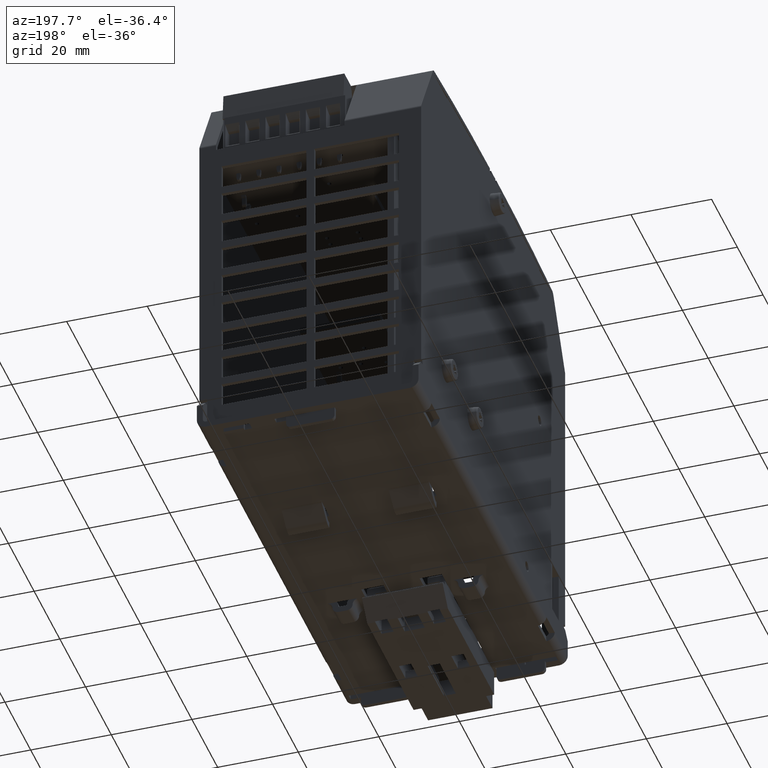
[diagram: clean part render]
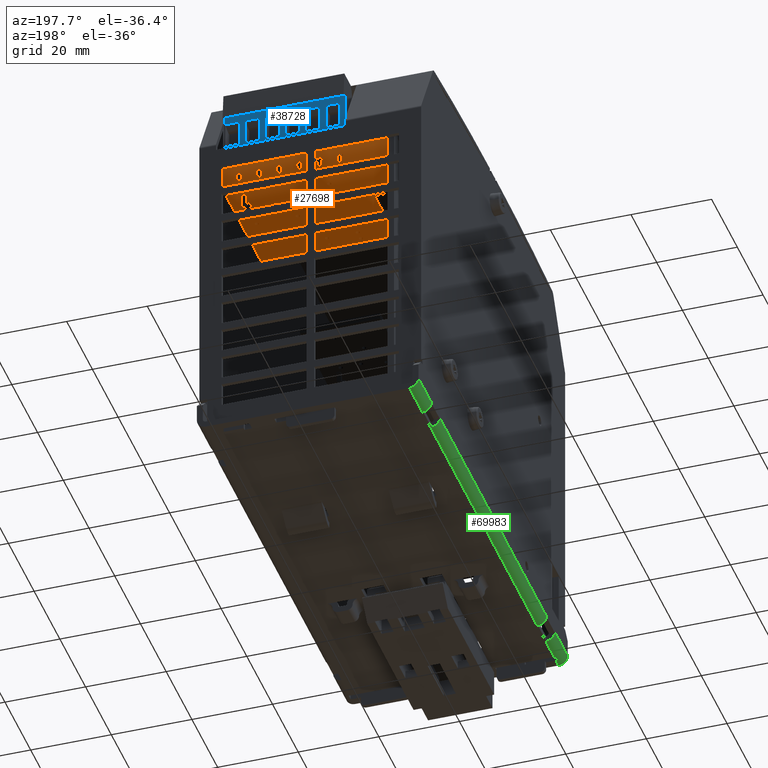
[diagram: same view with three faces highlighted in distinct colors, each labeled with its STEP entity id]
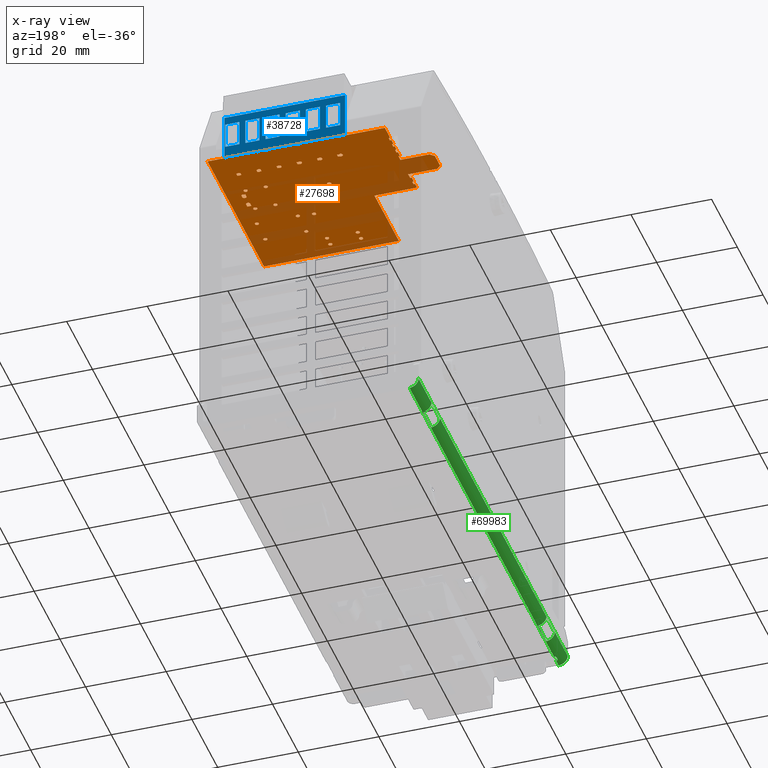
[diagram: x-ray of the same camera — body ghosted, the three highlighted faces saturated]
A machine part, auxiliary view with three faces highlighted in distinct colors.
The next image is the same camera in x-ray (body ghosted, the three faces saturated) — at least one of them is partly hidden behind the body in this view.
Their STEP definitions:

[orange] entity #27698 — the highlighted planar face has unit normal (0, 0, 1).
#25137=CARTESIAN_POINT('',(0.885543307086679,1.50557886499046,3.169708661417326));
#25138=VERTEX_POINT('',#25137);
#25139=CARTESIAN_POINT('',(0.885543307086679,1.544948943730618,3.169708661417326));
#25140=VERTEX_POINT('',#25139);
#25141=CARTESIAN_POINT('',(0.885543307086679,1.50557886499046,3.169708661417326));
#25142=DIRECTION('',(0.0,1.0,0.0));
#25143=VECTOR('',#25142,0.039370078740157);
#25144=LINE('',#25141,#25143);
#25145=EDGE_CURVE('',#25138,#25140,#25144,.T.);
#25196=CARTESIAN_POINT('',(0.884717067642148,1.50557886499046,3.169708661417326));
#25197=VERTEX_POINT('',#25196);
#25198=CARTESIAN_POINT('',(0.884717067642148,1.50557886499046,3.169708661417326));
#25199=DIRECTION('',(1.0,0.0,0.0));
#25200=VECTOR('',#25199,0.000826239444531);
#25201=LINE('',#25198,#25200);
#25202=EDGE_CURVE('',#25197,#25138,#25201,.T.);
#25288=CARTESIAN_POINT('',(0.846173228346522,1.544948943730618,3.169708661417326));
#25289=VERTEX_POINT('',#25288);
#25290=CARTESIAN_POINT('',(0.885543307086679,1.544948943730618,3.169708661417326));
#25291=DIRECTION('',(-1.0,0.0,0.0));
#25292=VECTOR('',#25291,0.039370078740158);
#25293=LINE('',#25290,#25292);
#25294=EDGE_CURVE('',#25140,#25289,#25293,.T.);
#25320=CARTESIAN_POINT('',(0.846173228346521,1.513532694947912,3.169708661417326));
#25321=VERTEX_POINT('',#25320);
#25330=CARTESIAN_POINT('',(0.846173228346521,1.544948943730618,3.169708661417326));
#25331=DIRECTION('',(0.0,-1.0,0.0));
#25332=VECTOR('',#25331,0.031416248782706);
#25333=LINE('',#25330,#25332);
#25334=EDGE_CURVE('',#25289,#25321,#25333,.T.);
#25383=CARTESIAN_POINT('',(0.846173228346521,1.386546045209567,3.169708661417326));
#25384=VERTEX_POINT('',#25383);
#25385=CARTESIAN_POINT('',(0.846173228346522,1.355019560206388,3.169708661417326));
#25386=VERTEX_POINT('',#25385);
#25387=CARTESIAN_POINT('',(0.846173228346521,1.386546045209567,3.169708661417326));
#25388=DIRECTION('',(0.0,-1.0,0.0));
#25389=VECTOR('',#25388,0.031526485003179);
#25390=LINE('',#25387,#25389);
#25391=EDGE_CURVE('',#25384,#25386,#25390,.T.);
#26005=CARTESIAN_POINT('',(0.885543307086679,1.394389638946545,3.169708661417326));
#26006=VERTEX_POINT('',#26005);
#26007=CARTESIAN_POINT('',(0.884736429813317,1.394389638946545,3.169708661417326));
#26008=VERTEX_POINT('',#26007);
#26009=CARTESIAN_POINT('',(0.885543307086679,1.394389638946545,3.169708661417326));
#26010=DIRECTION('',(-1.0,0.0,0.0));
#26011=VECTOR('',#26010,0.000806877273363);
#26012=LINE('',#26009,#26011);
#26013=EDGE_CURVE('',#26006,#26008,#26012,.T.);
#26109=CARTESIAN_POINT('',(0.885543307086679,1.355019560206388,3.169708661417326));
#26110=VERTEX_POINT('',#26109);
#26111=CARTESIAN_POINT('',(0.846173228346522,1.355019560206388,3.169708661417326));
#26112=DIRECTION('',(1.0,0.0,0.0));
#26113=VECTOR('',#26112,0.039370078740158);
#26114=LINE('',#26111,#26113);
#26115=EDGE_CURVE('',#25386,#26110,#26114,.T.);
#26212=CARTESIAN_POINT('',(0.885543307086679,1.355019560206388,3.169708661417326));
#26213=DIRECTION('',(0.0,1.0,0.0));
#26214=VECTOR('',#26213,0.039370078740157);
#26215=LINE('',#26212,#26214);
#26216=EDGE_CURVE('',#26110,#26006,#26215,.T.);
#26854=CARTESIAN_POINT('',(0.002310789090264,1.372964567165214,3.169708661417326));
#26855=DIRECTION('',(0.0,0.0,1.0));
#26856=DIRECTION('',(1.0,0.0,0.0));
#26857=AXIS2_PLACEMENT_3D('',#26854,#26855,#26856);
#26858=PLANE('',#26857);
#26859=CARTESIAN_POINT('',(-0.70866141732277,1.942039370078739,3.169708661417326));
#26860=VERTEX_POINT('',#26859);
#26861=CARTESIAN_POINT('',(-0.70866141732277,1.87903937007874,3.169708661417326));
#26862=VERTEX_POINT('',#26861);
#26863=CARTESIAN_POINT('',(-0.70866141732277,1.942039370078739,3.169708661417326));
#26864=DIRECTION('',(0.0,-1.0,0.0));
#26865=VECTOR('',#26864,0.062999999999999);
#26866=LINE('',#26863,#26865);
#26867=EDGE_CURVE('',#26860,#26862,#26866,.T.);
#26868=ORIENTED_EDGE('',*,*,#26867,.F.);
#26869=CARTESIAN_POINT('',(-0.69366141732277,1.942039370078739,3.169708661417326));
#26870=VERTEX_POINT('',#26869);
#26871=CARTESIAN_POINT('',(-0.69366141732277,1.942039370078739,3.169708661417326));
#26872=DIRECTION('',(-1.0,0.0,0.0));
#26873=VECTOR('',#26872,0.015);
#26874=LINE('',#26871,#26873);
#26875=EDGE_CURVE('',#26870,#26860,#26874,.T.);
#26876=ORIENTED_EDGE('',*,*,#26875,.F.);
#26877=CARTESIAN_POINT('',(-0.69366141732277,1.980039370078739,3.169708661417326));
#26878=VERTEX_POINT('',#26877);
#26879=CARTESIAN_POINT('',(-0.69366141732277,1.980039370078739,3.169708661417326));
#26880=DIRECTION('',(0.0,-1.0,0.0));
#26881=VECTOR('',#26880,0.038);
#26882=LINE('',#26879,#26881);
#26883=EDGE_CURVE('',#26878,#26870,#26882,.T.);
#26884=ORIENTED_EDGE('',*,*,#26883,.F.);
#26885=CARTESIAN_POINT('',(-0.70866141732277,1.980039370078739,3.169708661417326));
#26886=VERTEX_POINT('',#26885);
#26887=CARTESIAN_POINT('',(-0.70866141732277,1.980039370078739,3.169708661417326));
#26888=DIRECTION('',(1.0,0.0,0.0));
#26889=VECTOR('',#26888,0.015);
#26890=LINE('',#26887,#26889);
#26891=EDGE_CURVE('',#26886,#26878,#26890,.T.);
#26892=ORIENTED_EDGE('',*,*,#26891,.F.);
#26893=CARTESIAN_POINT('',(-0.70866141732277,2.058897637795275,3.169708661417326));
#26894=VERTEX_POINT('',#26893);
#26895=CARTESIAN_POINT('',(-0.70866141732277,2.058897637795275,3.169708661417326));
#26896=DIRECTION('',(0.0,-1.0,0.0));
#26897=VECTOR('',#26896,0.078858267716536);
#26898=LINE('',#26895,#26897);
#26899=EDGE_CURVE('',#26894,#26886,#26898,.T.);
#26900=ORIENTED_EDGE('',*,*,#26899,.F.);
#26901=CARTESIAN_POINT('',(-0.70866141732277,2.143039370078739,3.169708661417326));
#26902=VERTEX_POINT('',#26901);
#26903=CARTESIAN_POINT('',(-0.70866141732277,2.143039370078739,3.169708661417326));
#26904=DIRECTION('',(0.0,-1.0,0.0));
#26905=VECTOR('',#26904,0.084141732283464);
#26906=LINE('',#26903,#26905);
#26907=EDGE_CURVE('',#26902,#26894,#26906,.T.);
#26908=ORIENTED_EDGE('',*,*,#26907,.F.);
#26909=CARTESIAN_POINT('',(1.02333858267723,2.143039370078739,3.169708661417326));
#26910=VERTEX_POINT('',#26909);
#26911=CARTESIAN_POINT('',(1.02333858267723,2.143039370078739,3.169708661417326));
#26912=DIRECTION('',(-1.0,0.0,0.0));
#26913=VECTOR('',#26912,1.732);
#26914=LINE('',#26911,#26913);
#26915=EDGE_CURVE('',#26910,#26902,#26914,.T.);
#26916=ORIENTED_EDGE('',*,*,#26915,.F.);
#26917=CARTESIAN_POINT('',(1.02333858267723,0.413039370078739,3.169708661417326));
#26918=VERTEX_POINT('',#26917);
#26919=CARTESIAN_POINT('',(1.02333858267723,0.413039370078739,3.169708661417326));
#26920=DIRECTION('',(0.0,1.0,0.0));
#26921=VECTOR('',#26920,1.73);
#26922=LINE('',#26919,#26921);
#26923=EDGE_CURVE('',#26918,#26910,#26922,.T.);
#26924=ORIENTED_EDGE('',*,*,#26923,.F.);
#26925=CARTESIAN_POINT('',(-0.29366141732277,0.413039370078739,3.169708661417326));
#26926=VERTEX_POINT('',#26925);
#26927=CARTESIAN_POINT('',(-0.29366141732277,0.413039370078739,3.169708661417326));
#26928=DIRECTION('',(1.0,0.0,0.0));
#26929=VECTOR('',#26928,1.317);
#26930=LINE('',#26927,#26929);
#26931=EDGE_CURVE('',#26926,#26918,#26930,.T.);
#26932=ORIENTED_EDGE('',*,*,#26931,.F.);
#26933=CARTESIAN_POINT('',(-0.29366141732277,1.159039370078739,3.169708661417326));
#26934=VERTEX_POINT('',#26933);
#26935=CARTESIAN_POINT('',(-0.29366141732277,1.159039370078739,3.169708661417326));
#26936=DIRECTION('',(0.0,-1.0,0.0));
#26937=VECTOR('',#26936,0.746);
#26938=LINE('',#26935,#26937);
#26939=EDGE_CURVE('',#26934,#26926,#26938,.T.);
#26940=ORIENTED_EDGE('',*,*,#26939,.F.);
#26941=CARTESIAN_POINT('',(-0.70866141732277,1.159039370078739,3.169708661417326));
#26942=VERTEX_POINT('',#26941);
#26943=CARTESIAN_POINT('',(-0.70866141732277,1.159039370078739,3.169708661417326));
#26944=DIRECTION('',(1.0,0.0,0.0));
#26945=VECTOR('',#26944,0.415);
#26946=LINE('',#26943,#26945);
#26947=EDGE_CURVE('',#26942,#26934,#26946,.T.);
#26948=ORIENTED_EDGE('',*,*,#26947,.F.);
#26949=CARTESIAN_POINT('',(-0.70866141732277,1.219039370078739,3.169708661417326));
#26950=VERTEX_POINT('',#26949);
#26951=CARTESIAN_POINT('',(-0.70866141732277,1.21903937007874,3.169708661417326));
#26952=DIRECTION('',(0.0,-1.0,0.0));
#26953=VECTOR('',#26952,0.06);
#26954=LINE('',#26951,#26953);
#26955=EDGE_CURVE('',#26950,#26942,#26954,.T.);
#26956=ORIENTED_EDGE('',*,*,#26955,.F.);
#26957=CARTESIAN_POINT('',(-0.69366141732277,1.219039370078739,3.169708661417326));
#26958=VERTEX_POINT('',#26957);
#26959=CARTESIAN_POINT('',(-0.69366141732277,1.219039370078739,3.169708661417326));
#26960=DIRECTION('',(-1.0,0.0,0.0));
#26961=VECTOR('',#26960,0.015);
#26962=LINE('',#26959,#26961);
#26963=EDGE_CURVE('',#26958,#26950,#26962,.T.);
#26964=ORIENTED_EDGE('',*,*,#26963,.F.);
#26965=CARTESIAN_POINT('',(-0.69366141732277,1.25903937007874,3.169708661417326));
#26966=VERTEX_POINT('',#26965);
#26967=CARTESIAN_POINT('',(-0.69366141732277,1.25903937007874,3.169708661417326));
#26968=DIRECTION('',(0.0,-1.0,0.0));
#26969=VECTOR('',#26968,0.04);
#26970=LINE('',#26967,#26969);
#26971=EDGE_CURVE('',#26966,#26958,#26970,.T.);
#26972=ORIENTED_EDGE('',*,*,#26971,.F.);
#26973=CARTESIAN_POINT('',(-0.70866141732277,1.25903937007874,3.169708661417326));
#26974=VERTEX_POINT('',#26973);
#26975=CARTESIAN_POINT('',(-0.70866141732277,1.25903937007874,3.169708661417326));
#26976=DIRECTION('',(1.0,0.0,0.0));
#26977=VECTOR('',#26976,0.015);
#26978=LINE('',#26975,#26977);
#26979=EDGE_CURVE('',#26974,#26966,#26978,.T.);
#26980=ORIENTED_EDGE('',*,*,#26979,.F.);
#26981=CARTESIAN_POINT('',(-0.70866141732277,1.322039370078739,3.169708661417326));
#26982=VERTEX_POINT('',#26981);
#26983=CARTESIAN_POINT('',(-0.70866141732277,1.322039370078739,3.169708661417326));
#26984=DIRECTION('',(0.0,-1.0,0.0));
#26985=VECTOR('',#26984,0.063);
#26986=LINE('',#26983,#26985);
#26987=EDGE_CURVE('',#26982,#26974,#26986,.T.);
#26988=ORIENTED_EDGE('',*,*,#26987,.F.);
#26989=CARTESIAN_POINT('',(-0.69366141732277,1.322039370078739,3.169708661417326));
#26990=VERTEX_POINT('',#26989);
#26991=CARTESIAN_POINT('',(-0.69366141732277,1.322039370078739,3.169708661417326));
#26992=DIRECTION('',(-1.0,0.0,0.0));
#26993=VECTOR('',#26992,0.015);
#26994=LINE('',#26991,#26993);
#26995=EDGE_CURVE('',#26990,#26982,#26994,.T.);
#26996=ORIENTED_EDGE('',*,*,#26995,.F.);
#26997=CARTESIAN_POINT('',(-0.69366141732277,1.382039370078739,3.169708661417326));
#26998=VERTEX_POINT('',#26997);
#26999=CARTESIAN_POINT('',(-0.69366141732277,1.382039370078739,3.169708661417326));
#27000=DIRECTION('',(0.0,-1.0,0.0));
#27001=VECTOR('',#27000,0.06);
#27002=LINE('',#26999,#27001);
#27003=EDGE_CURVE('',#26998,#26990,#27002,.T.);
#27004=ORIENTED_EDGE('',*,*,#27003,.F.);
#27005=CARTESIAN_POINT('',(-0.97866141732277,1.382039370078739,3.169708661417326));
#27006=VERTEX_POINT('',#27005);
#27007=CARTESIAN_POINT('',(-0.97866141732277,1.382039370078739,3.169708661417326));
#27008=DIRECTION('',(1.0,0.0,0.0));
#27009=VECTOR('',#27008,0.285);
#27010=LINE('',#27007,#27009);
#27011=EDGE_CURVE('',#27006,#26998,#27010,.T.);
#27012=ORIENTED_EDGE('',*,*,#27011,.F.);
#27013=CARTESIAN_POINT('',(-1.01866141732277,1.42203937007874,3.169708661417326));
#27014=VERTEX_POINT('',#27013);
#27015=CARTESIAN_POINT('',(-1.01866141732277,1.42203937007874,3.169708661417326));
#27016=DIRECTION('',(0.707106781186548,-0.707106781186548,0.0));
#27017=VECTOR('',#27016,0.056568542494924);
#27018=LINE('',#27015,#27017);
#27019=EDGE_CURVE('',#27014,#27006,#27018,.T.);
#27020=ORIENTED_EDGE('',*,*,#27019,.F.);
#27021=CARTESIAN_POINT('',(-1.01866141732277,1.580039370078739,3.169708661417326));
#27022=VERTEX_POINT('',#27021);
#27023=CARTESIAN_POINT('',(-1.01866141732277,1.580039370078739,3.169708661417326));
#27024=DIRECTION('',(0.0,-1.0,0.0));
#27025=VECTOR('',#27024,0.158);
#27026=LINE('',#27023,#27025);
#27027=EDGE_CURVE('',#27022,#27014,#27026,.T.);
#27028=ORIENTED_EDGE('',*,*,#27027,.F.);
#27029=CARTESIAN_POINT('',(-0.97866141732277,1.620039370078739,3.169708661417326));
#27030=VERTEX_POINT('',#27029);
#27031=CARTESIAN_POINT('',(-0.97866141732277,1.620039370078739,3.169708661417326));
#27032=DIRECTION('',(-0.707106781186553,-0.707106781186542,0.0));
#27033=VECTOR('',#27032,0.056568542494923);
#27034=LINE('',#27031,#27033);
#27035=EDGE_CURVE('',#27030,#27022,#27034,.T.);
#27036=ORIENTED_EDGE('',*,*,#27035,.F.);
#27037=CARTESIAN_POINT('',(-0.69366141732277,1.620039370078739,3.169708661417326));
#27038=VERTEX_POINT('',#27037);
#27039=CARTESIAN_POINT('',(-0.69366141732277,1.620039370078739,3.169708661417326));
#27040=DIRECTION('',(-1.0,0.0,0.0));
#27041=VECTOR('',#27040,0.285);
#27042=LINE('',#27039,#27041);
#27043=EDGE_CURVE('',#27038,#27030,#27042,.T.);
#27044=ORIENTED_EDGE('',*,*,#27043,.F.);
#27045=CARTESIAN_POINT('',(-0.69366141732277,1.67903937007874,3.169708661417326));
#27046=VERTEX_POINT('',#27045);
#27047=CARTESIAN_POINT('',(-0.69366141732277,1.67903937007874,3.169708661417326));
#27048=DIRECTION('',(0.0,-1.0,0.0));
#27049=VECTOR('',#27048,0.059000000000001);
#27050=LINE('',#27047,#27049);
#27051=EDGE_CURVE('',#27046,#27038,#27050,.T.);
#27052=ORIENTED_EDGE('',*,*,#27051,.F.);
#27053=CARTESIAN_POINT('',(-0.70866141732277,1.67903937007874,3.169708661417326));
#27054=VERTEX_POINT('',#27053);
#27055=CARTESIAN_POINT('',(-0.70866141732277,1.67903937007874,3.169708661417326));
#27056=DIRECTION('',(1.0,0.0,0.0));
#27057=VECTOR('',#27056,0.015);
#27058=LINE('',#27055,#27057);
#27059=EDGE_CURVE('',#27054,#27046,#27058,.T.);
#27060=ORIENTED_EDGE('',*,*,#27059,.F.);
#27061=CARTESIAN_POINT('',(-0.70866141732277,1.74203937007874,3.169708661417326));
#27062=VERTEX_POINT('',#27061);
#27063=CARTESIAN_POINT('',(-0.70866141732277,1.74203937007874,3.169708661417326));
#27064=DIRECTION('',(0.0,-1.0,0.0));
#27065=VECTOR('',#27064,0.063);
#27066=LINE('',#27063,#27065);
#27067=EDGE_CURVE('',#27062,#27054,#27066,.T.);
#27068=ORIENTED_EDGE('',*,*,#27067,.F.);
#27069=CARTESIAN_POINT('',(-0.69366141732277,1.74203937007874,3.169708661417326));
#27070=VERTEX_POINT('',#27069);
#27071=CARTESIAN_POINT('',(-0.69366141732277,1.74203937007874,3.169708661417326));
#27072=DIRECTION('',(-1.0,0.0,0.0));
#27073=VECTOR('',#27072,0.015);
#27074=LINE('',#27071,#27073);
#27075=EDGE_CURVE('',#27070,#27062,#27074,.T.);
#27076=ORIENTED_EDGE('',*,*,#27075,.F.);
#27077=CARTESIAN_POINT('',(-0.69366141732277,1.783039370078739,3.169708661417326));
#27078=VERTEX_POINT('',#27077);
#27079=CARTESIAN_POINT('',(-0.69366141732277,1.783039370078739,3.169708661417326));
#27080=DIRECTION('',(0.0,-1.0,0.0));
#27081=VECTOR('',#27080,0.040999999999999);
#27082=LINE('',#27079,#27081);
#27083=EDGE_CURVE('',#27078,#27070,#27082,.T.);
#27084=ORIENTED_EDGE('',*,*,#27083,.F.);
#27085=CARTESIAN_POINT('',(-0.70866141732277,1.783039370078739,3.169708661417326));
#27086=VERTEX_POINT('',#27085);
#27087=CARTESIAN_POINT('',(-0.70866141732277,1.783039370078739,3.169708661417326));
#27088=DIRECTION('',(1.0,0.0,0.0));
#27089=VECTOR('',#27088,0.015);
#27090=LINE('',#27087,#27089);
#27091=EDGE_CURVE('',#27086,#27078,#27090,.T.);
#27092=ORIENTED_EDGE('',*,*,#27091,.F.);
#27093=CARTESIAN_POINT('',(-0.70866141732277,1.838039370078739,3.169708661417326));
#27094=VERTEX_POINT('',#27093);
#27095=CARTESIAN_POINT('',(-0.70866141732277,1.838039370078739,3.169708661417326));
#27096=DIRECTION('',(0.0,-1.0,0.0));
#27097=VECTOR('',#27096,0.055);
#27098=LINE('',#27095,#27097);
#27099=EDGE_CURVE('',#27094,#27086,#27098,.T.);
#27100=ORIENTED_EDGE('',*,*,#27099,.F.);
#27101=CARTESIAN_POINT('',(-0.69366141732277,1.838039370078739,3.169708661417326));
#27102=VERTEX_POINT('',#27101);
#27103=CARTESIAN_POINT('',(-0.69366141732277,1.838039370078739,3.169708661417326));
#27104=DIRECTION('',(-1.0,0.0,0.0));
#27105=VECTOR('',#27104,0.015);
#27106=LINE('',#27103,#27105);
#27107=EDGE_CURVE('',#27102,#27094,#27106,.T.);
#27108=ORIENTED_EDGE('',*,*,#27107,.F.);
#27109=CARTESIAN_POINT('',(-0.69366141732277,1.87903937007874,3.169708661417326));
#27110=VERTEX_POINT('',#27109);
#27111=CARTESIAN_POINT('',(-0.69366141732277,1.87903937007874,3.169708661417326));
#27112=DIRECTION('',(0.0,-1.0,0.0));
#27113=VECTOR('',#27112,0.041);
#27114=LINE('',#27111,#27113);
#27115=EDGE_CURVE('',#27110,#27102,#27114,.T.);
#27116=ORIENTED_EDGE('',*,*,#27115,.F.);
#27117=CARTESIAN_POINT('',(-0.70866141732277,1.87903937007874,3.169708661417326));
#27118=DIRECTION('',(1.0,0.0,0.0));
#27119=VECTOR('',#27118,0.015);
#27120=LINE('',#27117,#27119);
#27121=EDGE_CURVE('',#26862,#27110,#27120,.T.);
#27122=ORIENTED_EDGE('',*,*,#27121,.F.);
#27123=EDGE_LOOP('',(#26868,#26876,#26884,#26892,#26900,#26908,#26916,#26924,#26932,#26940,#26948,#26956,#26964,#26972,#26980,#26988,#26996,#27004,#27012,#27020,#27028,#27036,#27044,#27052,#27060,#27068,#27076,#27084,#27092,#27100,#27108,#27116,#27122));
#27124=FACE_OUTER_BOUND('',#27123,.T.);
#27125=CARTESIAN_POINT('',(0.820149606299277,1.845291338582676,3.169708661417326));
#27126=VERTEX_POINT('',#27125);
#27127=CARTESIAN_POINT('',(0.828023622047308,1.845291338582676,3.169708661417326));
#27128=VERTEX_POINT('',#27127);
#27129=CARTESIAN_POINT('',(0.820149606299277,1.845291338582676,3.169708661417326));
#27130=DIRECTION('',(1.0,0.0,0.0));
#27131=VECTOR('',#27130,0.007874015748031);
#27132=LINE('',#27129,#27131);
#27133=EDGE_CURVE('',#27126,#27128,#27132,.T.);
#27134=ORIENTED_EDGE('',*,*,#27133,.T.);
#27135=CARTESIAN_POINT('',(0.828023622047308,1.876787401574802,3.169708661417326));
#27136=VERTEX_POINT('',#27135);
#27137=CARTESIAN_POINT('',(0.828023622047308,1.845291338582676,3.169708661417326));
#27138=DIRECTION('',(0.0,1.0,0.0));
#27139=VECTOR('',#27138,0.031496062992126);
#27140=LINE('',#27137,#27139);
#27141=EDGE_CURVE('',#27128,#27136,#27140,.T.);
#27142=ORIENTED_EDGE('',*,*,#27141,.T.);
#27143=CARTESIAN_POINT('',(0.820149606299279,1.876787401574802,3.169708661417326));
#27144=VERTEX_POINT('',#27143);
#27145=CARTESIAN_POINT('',(0.828023622047308,1.876787401574802,3.169708661417326));
#27146=DIRECTION('',(-1.0,0.0,0.0));
#27147=VECTOR('',#27146,0.007874015748029);
#27148=LINE('',#27145,#27147);
#27149=EDGE_CURVE('',#27136,#27144,#27148,.T.);
#27150=ORIENTED_EDGE('',*,*,#27149,.T.);
#27151=CARTESIAN_POINT('',(0.796527559055182,1.876787401574802,3.169708661417326));
#27152=VERTEX_POINT('',#27151);
#27153=CARTESIAN_POINT('',(0.80833858267723,1.86103937007874,3.169708661417326));
#27154=DIRECTION('',(0.0,0.0,1.0));
#27155=DIRECTION('',(1.0,0.0,0.0));
#27156=AXIS2_PLACEMENT_3D('',#27153,#27154,#27155);
#27157=CIRCLE('',#27156,0.019685039370079);
#27158=EDGE_CURVE('',#27144,#27152,#27157,.T.);
#27159=ORIENTED_EDGE('',*,*,#27158,.T.);
#27160=CARTESIAN_POINT('',(0.78865354330715,1.876787401574802,3.169708661417326));
#27161=VERTEX_POINT('',#27160);
#27162=CARTESIAN_POINT('',(0.796527559055182,1.876787401574802,3.169708661417326));
#27163=DIRECTION('',(-1.0,0.0,0.0));
#27164=VECTOR('',#27163,0.007874015748032);
#27165=LINE('',#27162,#27164);
#27166=EDGE_CURVE('',#27152,#27161,#27165,.T.);
#27167=ORIENTED_EDGE('',*,*,#27166,.T.);
#27168=CARTESIAN_POINT('',(0.78865354330715,1.845291338582676,3.169708661417326));
#27169=VERTEX_POINT('',#27168);
#27170=CARTESIAN_POINT('',(0.78865354330715,1.876787401574802,3.169708661417326));
#27171=DIRECTION('',(0.0,-1.0,0.0));
#27172=VECTOR('',#27171,0.031496062992126);
#27173=LINE('',#27170,#27172);
#27174=EDGE_CURVE('',#27161,#27169,#27173,.T.);
#27175=ORIENTED_EDGE('',*,*,#27174,.T.);
#27176=CARTESIAN_POINT('',(0.796527559055184,1.845291338582676,3.169708661417326));
#27177=VERTEX_POINT('',#27176);
#27178=CARTESIAN_POINT('',(0.78865354330715,1.845291338582676,3.169708661417326));
#27179=DIRECTION('',(1.0,0.0,0.0));
#27180=VECTOR('',#27179,0.007874015748034);
#27181=LINE('',#27178,#27180);
#27182=EDGE_CURVE('',#27169,#27177,#27181,.T.);
#27183=ORIENTED_EDGE('',*,*,#27182,.T.);
#27184=CARTESIAN_POINT('',(0.80833858267723,1.86103937007874,3.169708661417326));
#27185=DIRECTION('',(0.0,0.0,1.0));
#27186=DIRECTION('',(1.0,0.0,0.0));
#27187=AXIS2_PLACEMENT_3D('',#27184,#27185,#27186);
#27188=CIRCLE('',#27187,0.019685039370079);
#27189=EDGE_CURVE('',#27177,#27126,#27188,.T.);
#27190=ORIENTED_EDGE('',*,*,#27189,.T.);
#27191=EDGE_LOOP('',(#27134,#27142,#27150,#27159,#27167,#27175,#27183,#27190));
#27192=FACE_BOUND('',#27191,.T.);
#27193=CARTESIAN_POINT('',(0.631173228346521,1.876787401574802,3.169708661417326));
#27194=VERTEX_POINT('',#27193);
#27195=CARTESIAN_POINT('',(0.623149606299279,1.876787401574802,3.169708661417326));
#27196=VERTEX_POINT('',#27195);
#27197=CARTESIAN_POINT('',(0.631173228346521,1.876787401574802,3.169708661417326));
#27198=DIRECTION('',(-1.0,0.0,0.0));
#27199=VECTOR('',#27198,0.008023622047242);
#27200=LINE('',#27197,#27199);
#27201=EDGE_CURVE('',#27194,#27196,#27200,.T.);
#27202=ORIENTED_EDGE('',*,*,#27201,.T.);
#27203=CARTESIAN_POINT('',(0.599527559055182,1.876787401574802,3.169708661417326));
#27204=VERTEX_POINT('',#27203);
#27205=CARTESIAN_POINT('',(0.61133858267723,1.86103937007874,3.169708661417326));
#27206=DIRECTION('',(0.0,0.0,1.0));
#27207=DIRECTION('',(1.0,0.0,0.0));
#27208=AXIS2_PLACEMENT_3D('',#27205,#27206,#27207);
#27209=CIRCLE('',#27208,0.019685039370079);
#27210=EDGE_CURVE('',#27196,#27204,#27209,.T.);
#27211=ORIENTED_EDGE('',*,*,#27210,.T.);
#27212=CARTESIAN_POINT('',(0.591803149606363,1.876787401574802,3.169708661417326));
#27213=VERTEX_POINT('',#27212);
#27214=CARTESIAN_POINT('',(0.599527559055182,1.876787401574802,3.169708661417326));
#27215=DIRECTION('',(-1.0,0.0,0.0));
#27216=VECTOR('',#27215,0.007724409448819);
#27217=LINE('',#27214,#27216);
#27218=EDGE_CURVE('',#27204,#27213,#27217,.T.);
#27219=ORIENTED_EDGE('',*,*,#27218,.T.);
#27220=CARTESIAN_POINT('',(0.591803149606363,1.86346168916078,3.169708661417326));
#27221=VERTEX_POINT('',#27220);
#27222=CARTESIAN_POINT('',(0.591803149606363,1.876787401574802,3.169708661417326));
#27223=DIRECTION('',(0.0,-1.0,0.0));
#27224=VECTOR('',#27223,0.013325712414022);
#27225=LINE('',#27222,#27224);
#27226=EDGE_CURVE('',#27213,#27221,#27225,.T.);
#27227=ORIENTED_EDGE('',*,*,#27226,.T.);
#27228=CARTESIAN_POINT('',(0.591803149606363,1.8586170509967,3.169708661417326));
#27229=VERTEX_POINT('',#27228);
#27230=CARTESIAN_POINT('',(0.61133858267723,1.86103937007874,3.169708661417326));
#27231=DIRECTION('',(0.0,0.0,1.0));
#27232=DIRECTION('',(1.0,0.0,0.0));
#27233=AXIS2_PLACEMENT_3D('',#27230,#27231,#27232);
#27234=CIRCLE('',#27233,0.019685039370079);
#27235=EDGE_CURVE('',#27221,#27229,#27234,.T.);
#27236=ORIENTED_EDGE('',*,*,#27235,.T.);
#27237=CARTESIAN_POINT('',(0.591803149606363,1.845291338582676,3.169708661417326));
#27238=VERTEX_POINT('',#27237);
#27239=CARTESIAN_POINT('',(0.591803149606363,1.8586170509967,3.169708661417326));
#27240=DIRECTION('',(0.0,-1.0,0.0));
#27241=VECTOR('',#27240,0.013325712414024);
#27242=LINE('',#27239,#27241);
#27243=EDGE_CURVE('',#27229,#27238,#27242,.T.);
#27244=ORIENTED_EDGE('',*,*,#27243,.T.);
#27245=CARTESIAN_POINT('',(0.599527559055184,1.845291338582676,3.169708661417326));
#27246=VERTEX_POINT('',#27245);
#27247=CARTESIAN_POINT('',(0.591803149606363,1.845291338582676,3.169708661417326));
#27248=DIRECTION('',(1.0,0.0,0.0));
#27249=VECTOR('',#27248,0.007724409448821);
#27250=LINE('',#27247,#27249);
#27251=EDGE_CURVE('',#27238,#27246,#27250,.T.);
#27252=ORIENTED_EDGE('',*,*,#27251,.T.);
#27253=CARTESIAN_POINT('',(0.623149606299277,1.845291338582676,3.169708661417326));
#27254=VERTEX_POINT('',#27253);
#27255=CARTESIAN_POINT('',(0.61133858267723,1.86103937007874,3.169708661417326));
#27256=DIRECTION('',(0.0,0.0,1.0));
#27257=DIRECTION('',(1.0,0.0,0.0));
#27258=AXIS2_PLACEMENT_3D('',#27255,#27256,#27257);
#27259=CIRCLE('',#27258,0.019685039370079);
#27260=EDGE_CURVE('',#27246,#27254,#27259,.T.);
#27261=ORIENTED_EDGE('',*,*,#27260,.T.);
#27262=CARTESIAN_POINT('',(0.631173228346521,1.845291338582676,3.169708661417326));
#27263=VERTEX_POINT('',#27262);
#27264=CARTESIAN_POINT('',(0.623149606299277,1.845291338582676,3.169708661417326));
#27265=DIRECTION('',(1.0,0.0,0.0));
#27266=VECTOR('',#27265,0.008023622047244);
#27267=LINE('',#27264,#27266);
#27268=EDGE_CURVE('',#27254,#27263,#27267,.T.);
#27269=ORIENTED_EDGE('',*,*,#27268,.T.);
#27270=CARTESIAN_POINT('',(0.631173228346521,1.845291338582676,3.169708661417326));
#27271=DIRECTION('',(0.0,1.0,0.0));
#27272=VECTOR('',#27271,0.031496062992126);
#27273=LINE('',#27270,#27272);
#27274=EDGE_CURVE('',#27263,#27194,#27273,.T.);
#27275=ORIENTED_EDGE('',*,*,#27274,.T.);
#27276=EDGE_LOOP('',(#27202,#27211,#27219,#27227,#27236,#27244,#27252,#27261,#27269,#27275));
#27277=FACE_BOUND('',#27276,.T.);
#27278=CARTESIAN_POINT('',(0.009653543307151,0.658039370078739,3.169708661417326));
#27279=VERTEX_POINT('',#27278);
#27280=CARTESIAN_POINT('',(0.02933858267723,0.658039370078739,3.169708661417326));
#27281=DIRECTION('',(0.0,0.0,1.0));
#27282=DIRECTION('',(1.0,0.0,0.0));
#27283=AXIS2_PLACEMENT_3D('',#27280,#27281,#27282);
#27284=CIRCLE('',#27283,0.019685039370079);
#27285=EDGE_CURVE('',#27279,#27279,#27284,.T.);
#27286=ORIENTED_EDGE('',*,*,#27285,.T.);
#27287=EDGE_LOOP('',(#27286));
#27288=FACE_BOUND('',#27287,.T.);
#27289=CARTESIAN_POINT('',(0.009653543307151,0.558039370078739,3.169708661417326));
#27290=VERTEX_POINT('',#27289);
#27291=CARTESIAN_POINT('',(0.02933858267723,0.558039370078739,3.169708661417326));
#27292=DIRECTION('',(0.0,0.0,1.0));
#27293=DIRECTION('',(1.0,0.0,0.0));
#27294=AXIS2_PLACEMENT_3D('',#27291,#27292,#27293);
#27295=CIRCLE('',#27294,0.019685039370079);
#27296=EDGE_CURVE('',#27290,#27290,#27295,.T.);
#27297=ORIENTED_EDGE('',*,*,#27296,.T.);
#27298=EDGE_LOOP('',(#27297));
#27299=FACE_BOUND('',#27298,.T.);
#27300=CARTESIAN_POINT('',(0.309653543307151,0.558039370078739,3.169708661417326));
#27301=VERTEX_POINT('',#27300);
#27302=CARTESIAN_POINT('',(0.32933858267723,0.558039370078739,3.169708661417326));
#27303=DIRECTION('',(0.0,0.0,1.0));
#27304=DIRECTION('',(1.0,0.0,0.0));
#27305=AXIS2_PLACEMENT_3D('',#27302,#27303,#27304);
#27306=CIRCLE('',#27305,0.019685039370079);
#27307=EDGE_CURVE('',#27301,#27301,#27306,.T.);
#27308=ORIENTED_EDGE('',*,*,#27307,.T.);
#27309=EDGE_LOOP('',(#27308));
#27310=FACE_BOUND('',#27309,.T.);
#27311=CARTESIAN_POINT('',(0.309653543307151,0.658039370078739,3.169708661417326));
#27312=VERTEX_POINT('',#27311);
#27313=CARTESIAN_POINT('',(0.32933858267723,0.658039370078739,3.169708661417326));
#27314=DIRECTION('',(0.0,0.0,1.0));
#27315=DIRECTION('',(1.0,0.0,0.0));
#27316=AXIS2_PLACEMENT_3D('',#27313,#27314,#27315);
#27317=CIRCLE('',#27316,0.019685039370079);
#27318=EDGE_CURVE('',#27312,#27312,#27317,.T.);
#27319=ORIENTED_EDGE('',*,*,#27318,.T.);
#27320=EDGE_LOOP('',(#27319));
#27321=FACE_BOUND('',#27320,.T.);
#27322=CARTESIAN_POINT('',(0.309653543307151,1.058039370078739,3.169708661417326));
#27323=VERTEX_POINT('',#27322);
#27324=CARTESIAN_POINT('',(0.32933858267723,1.058039370078739,3.169708661417326));
#27325=DIRECTION('',(0.0,0.0,1.0));
#27326=DIRECTION('',(1.0,0.0,0.0));
#27327=AXIS2_PLACEMENT_3D('',#27324,#27325,#27326);
#27328=CIRCLE('',#27327,0.019685039370079);
#27329=EDGE_CURVE('',#27323,#27323,#27328,.T.);
#27330=ORIENTED_EDGE('',*,*,#27329,.T.);
#27331=EDGE_LOOP('',(#27330));
#27332=FACE_BOUND('',#27331,.T.);
#27333=CARTESIAN_POINT('',(0.030653543307151,1.46703937007874,3.169708661417326));
#27334=VERTEX_POINT('',#27333);
#27335=CARTESIAN_POINT('',(0.05033858267723,1.46703937007874,3.169708661417326));
#27336=DIRECTION('',(0.0,0.0,1.0));
#27337=DIRECTION('',(1.0,0.0,0.0));
#27338=AXIS2_PLACEMENT_3D('',#27335,#27336,#27337);
#27339=CIRCLE('',#27338,0.019685039370079);
#27340=EDGE_CURVE('',#27334,#27334,#27339,.T.);
#27341=ORIENTED_EDGE('',*,*,#27340,.T.);
#27342=EDGE_LOOP('',(#27341));
#27343=FACE_BOUND('',#27342,.T.);
#27344=CARTESIAN_POINT('',(0.462653543307151,0.817039370078739,3.169708661417326));
#27345=VERTEX_POINT('',#27344);
#27346=CARTESIAN_POINT('',(0.48233858267723,0.817039370078739,3.169708661417326));
#27347=DIRECTION('',(0.0,0.0,1.0));
#27348=DIRECTION('',(1.0,0.0,0.0));
#27349=AXIS2_PLACEMENT_3D('',#27346,#27347,#27348);
#27350=CIRCLE('',#27349,0.019685039370079);
#27351=EDGE_CURVE('',#27345,#27345,#27350,.T.);
#27352=ORIENTED_EDGE('',*,*,#27351,.T.);
#27353=EDGE_LOOP('',(#27352));
#27354=FACE_BOUND('',#27353,.T.);
#27355=CARTESIAN_POINT('',(0.862653543307152,0.817039370078739,3.169708661417326));
#27356=VERTEX_POINT('',#27355);
#27357=CARTESIAN_POINT('',(0.88233858267723,0.817039370078739,3.169708661417326));
#27358=DIRECTION('',(0.0,0.0,1.0));
#27359=DIRECTION('',(1.0,0.0,0.0));
#27360=AXIS2_PLACEMENT_3D('',#27357,#27358,#27359);
#27361=CIRCLE('',#27360,0.019685039370079);
#27362=EDGE_CURVE('',#27356,#27356,#27361,.T.);
#27363=ORIENTED_EDGE('',*,*,#27362,.T.);
#27364=EDGE_LOOP('',(#27363));
#27365=FACE_BOUND('',#27364,.T.);
#27366=CARTESIAN_POINT('',(0.462653543307151,1.073039370078739,3.169708661417326));
#27367=VERTEX_POINT('',#27366);
#27368=CARTESIAN_POINT('',(0.48233858267723,1.073039370078739,3.169708661417326));
#27369=DIRECTION('',(0.0,0.0,1.0));
#27370=DIRECTION('',(1.0,0.0,0.0));
#27371=AXIS2_PLACEMENT_3D('',#27368,#27369,#27370);
#27372=CIRCLE('',#27371,0.019685039370079);
#27373=EDGE_CURVE('',#27367,#27367,#27372,.T.);
#27374=ORIENTED_EDGE('',*,*,#27373,.T.);
#27375=EDGE_LOOP('',(#27374));
#27376=FACE_BOUND('',#27375,.T.);
#27377=CARTESIAN_POINT('',(0.862653543307152,1.073039370078739,3.169708661417326));
#27378=VERTEX_POINT('',#27377);
#27379=CARTESIAN_POINT('',(0.88233858267723,1.073039370078739,3.169708661417326));
#27380=DIRECTION('',(0.0,0.0,1.0));
#27381=DIRECTION('',(1.0,0.0,0.0));
#27382=AXIS2_PLACEMENT_3D('',#27379,#27380,#27381);
#27383=CIRCLE('',#27382,0.019685039370079);
#27384=EDGE_CURVE('',#27378,#27378,#27383,.T.);
#27385=ORIENTED_EDGE('',*,*,#27384,.T.);
#27386=EDGE_LOOP('',(#27385));
#27387=FACE_BOUND('',#27386,.T.);
#27388=CARTESIAN_POINT('',(0.608653543307152,1.302039370078739,3.169708661417326));
#27389=VERTEX_POINT('',#27388);
#27390=CARTESIAN_POINT('',(0.628338582677231,1.302039370078739,3.169708661417326));
#27391=DIRECTION('',(0.0,0.0,1.0));
#27392=DIRECTION('',(1.0,0.0,0.0));
#27393=AXIS2_PLACEMENT_3D('',#27390,#27391,#27392);
#27394=CIRCLE('',#27393,0.019685039370079);
#27395=EDGE_CURVE('',#27389,#27389,#27394,.T.);
#27396=ORIENTED_EDGE('',*,*,#27395,.T.);
#27397=EDGE_LOOP('',(#27396));
#27398=FACE_BOUND('',#27397,.T.);
#27399=CARTESIAN_POINT('',(0.805653543307151,1.302039370078739,3.169708661417326));
#27400=VERTEX_POINT('',#27399);
#27401=CARTESIAN_POINT('',(0.82533858267723,1.302039370078739,3.169708661417326));
#27402=DIRECTION('',(0.0,0.0,1.0));
#27403=DIRECTION('',(1.0,0.0,0.0));
#27404=AXIS2_PLACEMENT_3D('',#27401,#27402,#27403);
#27405=CIRCLE('',#27404,0.019685039370079);
#27406=EDGE_CURVE('',#27400,#27400,#27405,.T.);
#27407=ORIENTED_EDGE('',*,*,#27406,.T.);
#27408=EDGE_LOOP('',(#27407));
#27409=FACE_BOUND('',#27408,.T.);
#27410=ORIENTED_EDGE('',*,*,#25391,.T.);
#27411=ORIENTED_EDGE('',*,*,#26115,.T.);
#27412=ORIENTED_EDGE('',*,*,#26216,.T.);
#27413=ORIENTED_EDGE('',*,*,#26013,.T.);
#27414=CARTESIAN_POINT('',(0.86533858267723,1.39103937007874,3.169708661417326));
#27415=DIRECTION('',(0.0,0.0,1.0));
#27416=DIRECTION('',(1.0,0.0,0.0));
#27417=AXIS2_PLACEMENT_3D('',#27414,#27415,#27416);
#27418=CIRCLE('',#27417,0.019685039370079);
#27419=EDGE_CURVE('',#26008,#25384,#27418,.T.);
#27420=ORIENTED_EDGE('',*,*,#27419,.T.);
#27421=EDGE_LOOP('',(#27410,#27411,#27412,#27413,#27420));
#27422=FACE_BOUND('',#27421,.T.);
#27423=CARTESIAN_POINT('',(0.805653543307151,1.598039370078739,3.169708661417326));
#27424=VERTEX_POINT('',#27423);
#27425=CARTESIAN_POINT('',(0.82533858267723,1.598039370078739,3.169708661417326));
#27426=DIRECTION('',(0.0,0.0,1.0));
#27427=DIRECTION('',(1.0,0.0,0.0));
#27428=AXIS2_PLACEMENT_3D('',#27425,#27426,#27427);
#27429=CIRCLE('',#27428,0.019685039370079);
#27430=EDGE_CURVE('',#27424,#27424,#27429,.T.);
#27431=ORIENTED_EDGE('',*,*,#27430,.T.);
#27432=EDGE_LOOP('',(#27431));
#27433=FACE_BOUND('',#27432,.T.);
#27434=CARTESIAN_POINT('',(0.608653543307152,1.598039370078739,3.169708661417326));
#27435=VERTEX_POINT('',#27434);
#27436=CARTESIAN_POINT('',(0.628338582677231,1.598039370078739,3.169708661417326));
#27437=DIRECTION('',(0.0,0.0,1.0));
#27438=DIRECTION('',(1.0,0.0,0.0));
#27439=AXIS2_PLACEMENT_3D('',#27436,#27437,#27438);
#27440=CIRCLE('',#27439,0.019685039370079);
#27441=EDGE_CURVE('',#27435,#27435,#27440,.T.);
#27442=ORIENTED_EDGE('',*,*,#27441,.T.);
#27443=EDGE_LOOP('',(#27442));
#27444=FACE_BOUND('',#27443,.T.);
#27445=CARTESIAN_POINT('',(0.237472440944945,1.876787401574802,3.169708661417326));
#27446=VERTEX_POINT('',#27445);
#27447=CARTESIAN_POINT('',(0.223649606299278,1.876787401574802,3.169708661417326));
#27448=VERTEX_POINT('',#27447);
#27449=CARTESIAN_POINT('',(0.237472440944945,1.876787401574802,3.169708661417326));
#27450=DIRECTION('',(-1.0,0.0,0.0));
#27451=VECTOR('',#27450,0.013822834645667);
#27452=LINE('',#27449,#27451);
#27453=EDGE_CURVE('',#27446,#27448,#27452,.T.);
#27454=ORIENTED_EDGE('',*,*,#27453,.T.);
#27455=CARTESIAN_POINT('',(0.200027559055182,1.876787401574802,3.169708661417326));
#27456=VERTEX_POINT('',#27455);
#27457=CARTESIAN_POINT('',(0.21183858267723,1.86103937007874,3.169708661417326));
#27458=DIRECTION('',(0.0,0.0,1.0));
#27459=DIRECTION('',(1.0,0.0,0.0));
#27460=AXIS2_PLACEMENT_3D('',#27457,#27458,#27459);
#27461=CIRCLE('',#27460,0.019685039370079);
#27462=EDGE_CURVE('',#27448,#27456,#27461,.T.);
#27463=ORIENTED_EDGE('',*,*,#27462,.T.);
#27464=CARTESIAN_POINT('',(0.198102362204788,1.876787401574802,3.169708661417326));
#27465=VERTEX_POINT('',#27464);
#27466=CARTESIAN_POINT('',(0.200027559055182,1.876787401574802,3.169708661417326));
#27467=DIRECTION('',(-1.0,0.0,0.0));
#27468=VECTOR('',#27467,0.001925196850394);
#27469=LINE('',#27466,#27468);
#27470=EDGE_CURVE('',#27456,#27465,#27469,.T.);
#27471=ORIENTED_EDGE('',*,*,#27470,.T.);
#27472=CARTESIAN_POINT('',(0.198102362204788,1.875139619088385,3.169708661417326));
#27473=VERTEX_POINT('',#27472);
#27474=CARTESIAN_POINT('',(0.198102362204788,1.876787401574802,3.169708661417326));
#27475=DIRECTION('',(0.0,-1.0,0.0));
#27476=VECTOR('',#27475,0.001647782486417);
#27477=LINE('',#27474,#27476);
#27478=EDGE_CURVE('',#27465,#27473,#27477,.T.);
#27479=ORIENTED_EDGE('',*,*,#27478,.T.);
#27480=CARTESIAN_POINT('',(0.198102362204788,1.846939121069094,3.169708661417326));
#27481=VERTEX_POINT('',#27480);
#27482=CARTESIAN_POINT('',(0.21183858267723,1.86103937007874,3.169708661417326));
#27483=DIRECTION('',(0.0,0.0,1.0));
#27484=DIRECTION('',(1.0,0.0,0.0));
#27485=AXIS2_PLACEMENT_3D('',#27482,#27483,#27484);
#27486=CIRCLE('',#27485,0.019685039370079);
#27487=EDGE_CURVE('',#27473,#27481,#27486,.T.);
#27488=ORIENTED_EDGE('',*,*,#27487,.T.);
#27489=CARTESIAN_POINT('',(0.198102362204788,1.845291338582676,3.169708661417326));
#27490=VERTEX_POINT('',#27489);
#27491=CARTESIAN_POINT('',(0.198102362204788,1.846939121069094,3.169708661417326));
#27492=DIRECTION('',(0.0,-1.0,0.0));
#27493=VECTOR('',#27492,0.001647782486418);
#27494=LINE('',#27491,#27493);
#27495=EDGE_CURVE('',#27481,#27490,#27494,.T.);
#27496=ORIENTED_EDGE('',*,*,#27495,.T.);
#27497=CARTESIAN_POINT('',(0.200027559055184,1.845291338582676,3.169708661417326));
#27498=VERTEX_POINT('',#27497);
#27499=CARTESIAN_POINT('',(0.198102362204788,1.845291338582676,3.169708661417326));
#27500=DIRECTION('',(1.0,0.0,0.0));
#27501=VECTOR('',#27500,0.001925196850396);
#27502=LINE('',#27499,#27501);
#27503=EDGE_CURVE('',#27490,#27498,#27502,.T.);
#27504=ORIENTED_EDGE('',*,*,#27503,.T.);
#27505=CARTESIAN_POINT('',(0.223649606299276,1.845291338582676,3.169708661417326));
#27506=VERTEX_POINT('',#27505);
#27507=CARTESIAN_POINT('',(0.21183858267723,1.86103937007874,3.169708661417326));
#27508=DIRECTION('',(0.0,0.0,1.0));
#27509=DIRECTION('',(1.0,0.0,0.0));
#27510=AXIS2_PLACEMENT_3D('',#27507,#27508,#27509);
#27511=CIRCLE('',#27510,0.019685039370079);
#27512=EDGE_CURVE('',#27498,#27506,#27511,.T.);
#27513=ORIENTED_EDGE('',*,*,#27512,.T.);
#27514=CARTESIAN_POINT('',(0.237472440944945,1.845291338582676,3.169708661417326));
#27515=VERTEX_POINT('',#27514);
#27516=CARTESIAN_POINT('',(0.223649606299276,1.845291338582676,3.169708661417326));
#27517=DIRECTION('',(1.0,0.0,0.0));
#27518=VECTOR('',#27517,0.013822834645669);
#27519=LINE('',#27516,#27518);
#27520=EDGE_CURVE('',#27506,#27515,#27519,.T.);
#27521=ORIENTED_EDGE('',*,*,#27520,.T.);
#27522=CARTESIAN_POINT('',(0.237472440944945,1.845291338582676,3.169708661417326));
#27523=DIRECTION('',(0.0,1.0,0.0));
#27524=VECTOR('',#27523,0.031496062992126);
#27525=LINE('',#27522,#27524);
#27526=EDGE_CURVE('',#27515,#27446,#27525,.T.);
#27527=ORIENTED_EDGE('',*,*,#27526,.T.);
#27528=EDGE_LOOP('',(#27454,#27463,#27471,#27479,#27488,#27496,#27504,#27513,#27521,#27527));
#27529=FACE_BOUND('',#27528,.T.);
#27530=CARTESIAN_POINT('',(0.434322834645733,1.876787401574802,3.169708661417326));
#27531=VERTEX_POINT('',#27530);
#27532=CARTESIAN_POINT('',(0.423649606299278,1.876787401574802,3.169708661417326));
#27533=VERTEX_POINT('',#27532);
#27534=CARTESIAN_POINT('',(0.434322834645733,1.876787401574802,3.169708661417326));
#27535=DIRECTION('',(-1.0,0.0,0.0));
#27536=VECTOR('',#27535,0.010673228346455);
#27537=LINE('',#27534,#27536);
#27538=EDGE_CURVE('',#27531,#27533,#27537,.T.);
#27539=ORIENTED_EDGE('',*,*,#27538,.T.);
#27540=CARTESIAN_POINT('',(0.400027559055182,1.876787401574802,3.169708661417326));
#27541=VERTEX_POINT('',#27540);
#27542=CARTESIAN_POINT('',(0.41183858267723,1.86103937007874,3.169708661417326));
#27543=DIRECTION('',(0.0,0.0,1.0));
#27544=DIRECTION('',(1.0,0.0,0.0));
#27545=AXIS2_PLACEMENT_3D('',#27542,#27543,#27544);
#27546=CIRCLE('',#27545,0.019685039370079);
#27547=EDGE_CURVE('',#27533,#27541,#27546,.T.);
#27548=ORIENTED_EDGE('',*,*,#27547,.T.);
#27549=CARTESIAN_POINT('',(0.394952755905575,1.876787401574802,3.169708661417326));
#27550=VERTEX_POINT('',#27549);
#27551=CARTESIAN_POINT('',(0.400027559055182,1.876787401574802,3.169708661417326));
#27552=DIRECTION('',(-1.0,0.0,0.0));
#27553=VECTOR('',#27552,0.005074803149607);
#27554=LINE('',#27551,#27553);
#27555=EDGE_CURVE('',#27541,#27550,#27554,.T.);
#27556=ORIENTED_EDGE('',*,*,#27555,.T.);
#27557=CARTESIAN_POINT('',(0.394952755905575,1.871157157842832,3.169708661417326));
#27558=VERTEX_POINT('',#27557);
#27559=CARTESIAN_POINT('',(0.394952755905575,1.876787401574802,3.169708661417326));
#27560=DIRECTION('',(0.0,-1.0,0.0));
#27561=VECTOR('',#27560,0.00563024373197);
#27562=LINE('',#27559,#27561);
#27563=EDGE_CURVE('',#27550,#27558,#27562,.T.);
#27564=ORIENTED_EDGE('',*,*,#27563,.T.);
#27565=CARTESIAN_POINT('',(0.394952755905575,1.850921582314648,3.169708661417326));
#27566=VERTEX_POINT('',#27565);
#27567=CARTESIAN_POINT('',(0.41183858267723,1.86103937007874,3.169708661417326));
#27568=DIRECTION('',(0.0,0.0,1.0));
#27569=DIRECTION('',(1.0,0.0,0.0));
#27570=AXIS2_PLACEMENT_3D('',#27567,#27568,#27569);
#27571=CIRCLE('',#27570,0.019685039370079);
#27572=EDGE_CURVE('',#27558,#27566,#27571,.T.);
#27573=ORIENTED_EDGE('',*,*,#27572,.T.);
#27574=CARTESIAN_POINT('',(0.394952755905575,1.845291338582676,3.169708661417326));
#27575=VERTEX_POINT('',#27574);
#27576=CARTESIAN_POINT('',(0.394952755905575,1.850921582314647,3.169708661417326));
#27577=DIRECTION('',(0.0,-1.0,0.0));
#27578=VECTOR('',#27577,0.005630243731972);
#27579=LINE('',#27576,#27578);
#27580=EDGE_CURVE('',#27566,#27575,#27579,.T.);
#27581=ORIENTED_EDGE('',*,*,#27580,.T.);
#27582=CARTESIAN_POINT('',(0.400027559055184,1.845291338582676,3.169708661417326));
#27583=VERTEX_POINT('',#27582);
#27584=CARTESIAN_POINT('',(0.394952755905575,1.845291338582676,3.169708661417326));
#27585=DIRECTION('',(1.0,0.0,0.0));
#27586=VECTOR('',#27585,0.005074803149609);
#27587=LINE('',#27584,#27586);
#27588=EDGE_CURVE('',#27575,#27583,#27587,.T.);
#27589=ORIENTED_EDGE('',*,*,#27588,.T.);
#27590=CARTESIAN_POINT('',(0.423649606299276,1.845291338582676,3.169708661417326));
#27591=VERTEX_POINT('',#27590);
#27592=CARTESIAN_POINT('',(0.41183858267723,1.86103937007874,3.169708661417326));
#27593=DIRECTION('',(0.0,0.0,1.0));
#27594=DIRECTION('',(1.0,0.0,0.0));
#27595=AXIS2_PLACEMENT_3D('',#27592,#27593,#27594);
#27596=CIRCLE('',#27595,0.019685039370079);
#27597=EDGE_CURVE('',#27583,#27591,#27596,.T.);
#27598=ORIENTED_EDGE('',*,*,#27597,.T.);
#27599=CARTESIAN_POINT('',(0.434322834645733,1.845291338582676,3.169708661417326));
#27600=VERTEX_POINT('',#27599);
#27601=CARTESIAN_POINT('',(0.423649606299277,1.845291338582676,3.169708661417326));
#27602=DIRECTION('',(1.0,0.0,0.0));
#27603=VECTOR('',#27602,0.010673228346456);
#27604=LINE('',#27601,#27603);
#27605=EDGE_CURVE('',#27591,#27600,#27604,.T.);
#27606=ORIENTED_EDGE('',*,*,#27605,.T.);
#27607=CARTESIAN_POINT('',(0.434322834645733,1.845291338582676,3.169708661417326));
#27608=DIRECTION('',(0.0,1.0,0.0));
#27609=VECTOR('',#27608,0.031496062992126);
#27610=LINE('',#27607,#27609);
#27611=EDGE_CURVE('',#27600,#27531,#27610,.T.);
#27612=ORIENTED_EDGE('',*,*,#27611,.T.);
#27613=EDGE_LOOP('',(#27539,#27548,#27556,#27564,#27573,#27581,#27589,#27598,#27606,#27612));
#27614=FACE_BOUND('',#27613,.T.);
#27615=CARTESIAN_POINT('',(-0.156228346456629,1.876787401574803,3.169708661417326));
#27616=VERTEX_POINT('',#27615);
#27617=CARTESIAN_POINT('',(-0.176350393700723,1.876787401574803,3.169708661417326));
#27618=VERTEX_POINT('',#27617);
#27619=CARTESIAN_POINT('',(-0.156228346456629,1.876787401574803,3.169708661417326));
#27620=DIRECTION('',(-1.0,0.0,0.0));
#27621=VECTOR('',#27620,0.020122047244094);
#27622=LINE('',#27619,#27621);
#27623=EDGE_CURVE('',#27616,#27618,#27622,.T.);
#27624=ORIENTED_EDGE('',*,*,#27623,.T.);
#27625=CARTESIAN_POINT('',(-0.176350393700723,1.845291338582677,3.169708661417326));
#27626=VERTEX_POINT('',#27625);
#27627=CARTESIAN_POINT('',(-0.18816141732277,1.86103937007874,3.169708661417326));
#27628=DIRECTION('',(0.0,0.0,1.0));
#27629=DIRECTION('',(1.0,0.0,0.0));
#27630=AXIS2_PLACEMENT_3D('',#27627,#27628,#27629);
#27631=CIRCLE('',#27630,0.019685039370079);
#27632=EDGE_CURVE('',#27618,#27626,#27631,.T.);
#27633=ORIENTED_EDGE('',*,*,#27632,.T.);
#27634=CARTESIAN_POINT('',(-0.156228346456629,1.845291338582677,3.169708661417326));
#27635=VERTEX_POINT('',#27634);
#27636=CARTESIAN_POINT('',(-0.176350393700723,1.845291338582677,3.169708661417326));
#27637=DIRECTION('',(1.0,0.0,0.0));
#27638=VECTOR('',#27637,0.020122047244094);
#27639=LINE('',#27636,#27638);
#27640=EDGE_CURVE('',#27626,#27635,#27639,.T.);
#27641=ORIENTED_EDGE('',*,*,#27640,.T.);
#27642=CARTESIAN_POINT('',(-0.156228346456629,1.845291338582677,3.169708661417326));
#27643=DIRECTION('',(0.0,1.0,0.0));
#27644=VECTOR('',#27643,0.031496062992126);
#27645=LINE('',#27642,#27644);
#27646=EDGE_CURVE('',#27635,#27616,#27645,.T.);
#27647=ORIENTED_EDGE('',*,*,#27646,.T.);
#27648=EDGE_LOOP('',(#27624,#27633,#27641,#27647));
#27649=FACE_BOUND('',#27648,.T.);
#27650=CARTESIAN_POINT('',(0.040622047244159,1.876787401574803,3.169708661417326));
#27651=VERTEX_POINT('',#27650);
#27652=CARTESIAN_POINT('',(0.023649606299277,1.876787401574803,3.169708661417326));
#27653=VERTEX_POINT('',#27652);
#27654=CARTESIAN_POINT('',(0.040622047244159,1.876787401574803,3.169708661417326));
#27655=DIRECTION('',(-1.0,0.0,0.0));
#27656=VECTOR('',#27655,0.016972440944881);
#27657=LINE('',#27654,#27656);
#27658=EDGE_CURVE('',#27651,#27653,#27657,.T.);
#27659=ORIENTED_EDGE('',*,*,#27658,.T.);
#27660=CARTESIAN_POINT('',(0.023649606299277,1.845291338582677,3.169708661417326));
#27661=VERTEX_POINT('',#27660);
#27662=CARTESIAN_POINT('',(0.01183858267723,1.86103937007874,3.169708661417326));
#27663=DIRECTION('',(0.0,0.0,1.0));
#27664=DIRECTION('',(1.0,0.0,0.0));
#27665=AXIS2_PLACEMENT_3D('',#27662,#27663,#27664);
#27666=CIRCLE('',#27665,0.019685039370079);
#27667=EDGE_CURVE('',#27653,#27661,#27666,.T.);
#27668=ORIENTED_EDGE('',*,*,#27667,.T.);
#27669=CARTESIAN_POINT('',(0.040622047244159,1.845291338582677,3.169708661417326));
#27670=VERTEX_POINT('',#27669);
#27671=CARTESIAN_POINT('',(0.023649606299277,1.845291338582677,3.169708661417326));
#27672=DIRECTION('',(1.0,0.0,0.0));
#27673=VECTOR('',#27672,0.016972440944881);
#27674=LINE('',#27671,#27673);
#27675=EDGE_CURVE('',#27661,#27670,#27674,.T.);
#27676=ORIENTED_EDGE('',*,*,#27675,.T.);
#27677=CARTESIAN_POINT('',(0.040622047244159,1.845291338582677,3.169708661417326));
#27678=DIRECTION('',(0.0,1.0,0.0));
#27679=VECTOR('',#27678,0.031496062992126);
#27680=LINE('',#27677,#27679);
#27681=EDGE_CURVE('',#27670,#27651,#27680,.T.);
#27682=ORIENTED_EDGE('',*,*,#27681,.T.);
#27683=EDGE_LOOP('',(#27659,#27668,#27676,#27682));
#27684=FACE_BOUND('',#27683,.T.);
#27685=ORIENTED_EDGE('',*,*,#25334,.T.);
#27686=CARTESIAN_POINT('',(0.86533858267723,1.50903937007874,3.169708661417326));
#27687=DIRECTION('',(0.0,0.0,1.0));
#27688=DIRECTION('',(1.0,0.0,0.0));
#27689=AXIS2_PLACEMENT_3D('',#27686,#27687,#27688);
#27690=CIRCLE('',#27689,0.019685039370079);
#27691=EDGE_CURVE('',#25321,#25197,#27690,.T.);
#27692=ORIENTED_EDGE('',*,*,#27691,.T.);
#27693=ORIENTED_EDGE('',*,*,#25202,.T.);
#27694=ORIENTED_EDGE('',*,*,#25145,.T.);
#27695=ORIENTED_EDGE('',*,*,#25294,.T.);
#27696=EDGE_LOOP('',(#27685,#27692,#27693,#27694,#27695));
#27697=FACE_BOUND('',#27696,.T.);
#27698=ADVANCED_FACE('',(#27124,#27192,#27277,#27288,#27299,#27310,#27321,#27332,#27343,#27354,#27365,#27376,#27387,#27398,#27409,#27422,#27433,#27444,#27529,#27614,#27649,#27684,#27697),#26858,.F.);

[blue] entity #38728 — the highlighted planar face has unit normal (0, 1, 0).
#27990=CARTESIAN_POINT('',(-0.223157480314896,2.057889763779527,3.248448818897641));
#27991=VERTEX_POINT('',#27990);
#28000=CARTESIAN_POINT('',(0.068181102362269,2.057889763779527,3.248448818897641));
#28001=VERTEX_POINT('',#28000);
#28002=CARTESIAN_POINT('',(0.068181102362269,2.057889763779527,3.248448818897641));
#28003=DIRECTION('',(-1.0,0.0,0.0));
#28004=VECTOR('',#28003,0.291338582677165);
#28005=LINE('',#28002,#28004);
#28006=EDGE_CURVE('',#28001,#27991,#28005,.T.);
#28080=CARTESIAN_POINT('',(-0.29402362204718,2.057889763779527,3.248448818897641));
#28081=VERTEX_POINT('',#28080);
#28088=CARTESIAN_POINT('',(-0.248748031495999,2.057889763779527,3.248448818897641));
#28089=VERTEX_POINT('',#28088);
#28090=CARTESIAN_POINT('',(-0.248748031495999,2.057889763779527,3.248448818897641));
#28091=DIRECTION('',(-1.0,0.0,0.0));
#28092=VECTOR('',#28091,0.045275590551181);
#28093=LINE('',#28090,#28092);
#28094=EDGE_CURVE('',#28089,#28081,#28093,.T.);
#28888=CARTESIAN_POINT('',(-0.29402362204718,2.057889763779527,3.701204724409452));
#28889=VERTEX_POINT('',#28888);
#28896=CARTESIAN_POINT('',(-0.29402362204718,2.057889763779527,3.701204724409452));
#28897=DIRECTION('',(0.0,0.0,-1.0));
#28898=VECTOR('',#28897,0.452755905511811);
#28899=LINE('',#28896,#28898);
#28900=EDGE_CURVE('',#28889,#28081,#28899,.T.);
#28912=CARTESIAN_POINT('',(0.089834645669355,2.057889763779527,3.620844319953231));
#28913=VERTEX_POINT('',#28912);
#28914=CARTESIAN_POINT('',(0.089834645669355,2.057889763779527,3.366559055118114));
#28915=VERTEX_POINT('',#28914);
#28916=CARTESIAN_POINT('',(0.089834645669355,2.057889763779527,3.620844319953231));
#28917=DIRECTION('',(0.0,0.0,-1.0));
#28918=VECTOR('',#28917,0.254285264835118);
#28919=LINE('',#28916,#28918);
#28920=EDGE_CURVE('',#28913,#28915,#28919,.T.);
#28952=CARTESIAN_POINT('',(-0.047960629921196,2.057889763779527,3.620844319953231));
#28953=VERTEX_POINT('',#28952);
#28954=CARTESIAN_POINT('',(-0.047960629921196,2.057889763779527,3.620844319953231));
#28955=DIRECTION('',(1.0,0.0,0.0));
#28956=VECTOR('',#28955,0.137795275590551);
#28957=LINE('',#28954,#28956);
#28958=EDGE_CURVE('',#28953,#28913,#28957,.T.);
#28983=CARTESIAN_POINT('',(-0.047960629921196,2.057889763779527,3.366559055118114));
#28984=VERTEX_POINT('',#28983);
#28985=CARTESIAN_POINT('',(-0.047960629921196,2.057889763779527,3.366559055118114));
#28986=DIRECTION('',(0.0,0.0,1.0));
#28987=VECTOR('',#28986,0.254285264835118);
#28988=LINE('',#28985,#28987);
#28989=EDGE_CURVE('',#28984,#28953,#28988,.T.);
#29014=CARTESIAN_POINT('',(0.089834645669355,2.057889763779527,3.366559055118114));
#29015=DIRECTION('',(-1.0,0.0,0.0));
#29016=VECTOR('',#29015,0.137795275590551);
#29017=LINE('',#29014,#29016);
#29018=EDGE_CURVE('',#28915,#28984,#29017,.T.);
#29144=CARTESIAN_POINT('',(-0.107015748031432,2.057889763779527,3.620844319953231));
#29145=VERTEX_POINT('',#29144);
#29146=CARTESIAN_POINT('',(-0.107015748031432,2.057889763779527,3.366559055118114));
#29147=VERTEX_POINT('',#29146);
#29148=CARTESIAN_POINT('',(-0.107015748031432,2.057889763779527,3.620844319953231));
#29149=DIRECTION('',(0.0,0.0,-1.0));
#29150=VECTOR('',#29149,0.254285264835118);
#29151=LINE('',#29148,#29150);
#29152=EDGE_CURVE('',#29145,#29147,#29151,.T.);
#29184=CARTESIAN_POINT('',(-0.244811023621983,2.057889763779527,3.620844319953231));
#29185=VERTEX_POINT('',#29184);
#29186=CARTESIAN_POINT('',(-0.244811023621983,2.057889763779527,3.620844319953231));
#29187=DIRECTION('',(1.0,0.0,0.0));
#29188=VECTOR('',#29187,0.137795275590551);
#29189=LINE('',#29186,#29188);
#29190=EDGE_CURVE('',#29185,#29145,#29189,.T.);
#29215=CARTESIAN_POINT('',(-0.244811023621983,2.057889763779527,3.366559055118114));
#29216=VERTEX_POINT('',#29215);
#29217=CARTESIAN_POINT('',(-0.244811023621983,2.057889763779527,3.366559055118114));
#29218=DIRECTION('',(0.0,0.0,1.0));
#29219=VECTOR('',#29218,0.254285264835118);
#29220=LINE('',#29217,#29219);
#29221=EDGE_CURVE('',#29216,#29185,#29220,.T.);
#29246=CARTESIAN_POINT('',(-0.107015748031432,2.057889763779527,3.366559055118114));
#29247=DIRECTION('',(-1.0,0.0,0.0));
#29248=VECTOR('',#29247,0.137795275590551);
#29249=LINE('',#29246,#29248);
#29250=EDGE_CURVE('',#29147,#29216,#29249,.T.);
#29387=CARTESIAN_POINT('',(-0.248748031495999,2.057889763779527,3.232700787401579));
#29388=VERTEX_POINT('',#29387);
#29389=CARTESIAN_POINT('',(-0.248748031495999,2.057889763779527,3.232700787401579));
#29390=DIRECTION('',(0.0,0.0,1.0));
#29391=VECTOR('',#29390,0.015748031496063);
#29392=LINE('',#29389,#29391);
#29393=EDGE_CURVE('',#29388,#28089,#29392,.T.);
#29435=CARTESIAN_POINT('',(-0.223157480314896,2.057889763779527,3.232700787401579));
#29436=VERTEX_POINT('',#29435);
#29443=CARTESIAN_POINT('',(-0.223157480314896,2.057889763779527,3.232700787401579));
#29444=DIRECTION('',(0.0,0.0,1.0));
#29445=VECTOR('',#29444,0.015748031496063);
#29446=LINE('',#29443,#29445);
#29447=EDGE_CURVE('',#29436,#27991,#29446,.T.);
#29470=CARTESIAN_POINT('',(0.068181102362269,2.057889763779527,3.232700787401579));
#29471=VERTEX_POINT('',#29470);
#29472=CARTESIAN_POINT('',(0.068181102362269,2.057889763779527,3.232700787401579));
#29473=DIRECTION('',(0.0,0.0,1.0));
#29474=VECTOR('',#29473,0.015748031496063);
#29475=LINE('',#29472,#29474);
#29476=EDGE_CURVE('',#29471,#28001,#29475,.T.);
#29518=CARTESIAN_POINT('',(0.093771653543371,2.057889763779527,3.232700787401579));
#29519=VERTEX_POINT('',#29518);
#29526=CARTESIAN_POINT('',(0.093771653543371,2.057889763779527,3.248448818897641));
#29527=VERTEX_POINT('',#29526);
#29528=CARTESIAN_POINT('',(0.093771653543371,2.057889763779527,3.232700787401579));
#29529=DIRECTION('',(0.0,0.0,1.0));
#29530=VECTOR('',#29529,0.015748031496063);
#29531=LINE('',#29528,#29530);
#29532=EDGE_CURVE('',#29519,#29527,#29531,.T.);
#32014=CARTESIAN_POINT('',(0.887078740157544,2.057889763779527,3.701204724409452));
#32015=VERTEX_POINT('',#32014);
#32022=CARTESIAN_POINT('',(0.887078740157544,2.057889763779527,3.701204724409452));
#32023=DIRECTION('',(-1.0,0.0,0.0));
#32024=VECTOR('',#32023,1.181102362204725);
#32025=LINE('',#32022,#32024);
#32026=EDGE_CURVE('',#32015,#28889,#32025,.T.);
#32385=CARTESIAN_POINT('',(-0.248748031495999,2.057889763779527,3.232700787401578));
#32386=DIRECTION('',(1.0,0.0,0.0));
#32387=VECTOR('',#32386,0.025590551181102);
#32388=LINE('',#32385,#32387);
#32389=EDGE_CURVE('',#29388,#29436,#32388,.T.);
#32396=CARTESIAN_POINT('',(0.068181102362269,2.057889763779527,3.232700787401578));
#32397=DIRECTION('',(1.0,0.0,0.0));
#32398=VECTOR('',#32397,0.025590551181102);
#32399=LINE('',#32396,#32398);
#32400=EDGE_CURVE('',#29471,#29519,#32399,.T.);
#32645=CARTESIAN_POINT('',(0.144952755905575,2.057889763779527,3.232700787401579));
#32646=VERTEX_POINT('',#32645);
#32647=CARTESIAN_POINT('',(0.170543307086678,2.057889763779527,3.232700787401579));
#32648=VERTEX_POINT('',#32647);
#32649=CARTESIAN_POINT('',(0.144952755905575,2.057889763779527,3.232700787401578));
#32650=DIRECTION('',(1.0,0.0,0.0));
#32651=VECTOR('',#32650,0.025590551181102);
#32652=LINE('',#32649,#32651);
#32653=EDGE_CURVE('',#32646,#32648,#32652,.T.);
#32679=CARTESIAN_POINT('',(0.461881889763843,2.057889763779527,3.232700787401579));
#32680=VERTEX_POINT('',#32679);
#32681=CARTESIAN_POINT('',(0.487472440944946,2.057889763779527,3.232700787401579));
#32682=VERTEX_POINT('',#32681);
#32683=CARTESIAN_POINT('',(0.461881889763843,2.057889763779527,3.232700787401578));
#32684=DIRECTION('',(1.0,0.0,0.0));
#32685=VECTOR('',#32684,0.025590551181102);
#32686=LINE('',#32683,#32685);
#32687=EDGE_CURVE('',#32680,#32682,#32686,.T.);
#32869=CARTESIAN_POINT('',(0.855582677165418,2.057889763779527,3.232700787401578));
#32870=VERTEX_POINT('',#32869);
#32871=CARTESIAN_POINT('',(0.881173228346521,2.057889763779527,3.232700787401578));
#32872=VERTEX_POINT('',#32871);
#32873=CARTESIAN_POINT('',(0.855582677165418,2.057889763779527,3.232700787401578));
#32874=DIRECTION('',(1.0,0.0,0.0));
#32875=VECTOR('',#32874,0.025590551181102);
#32876=LINE('',#32873,#32875);
#32877=EDGE_CURVE('',#32870,#32872,#32876,.T.);
#32903=CARTESIAN_POINT('',(0.538653543307151,2.057889763779527,3.232700787401578));
#32904=VERTEX_POINT('',#32903);
#32905=CARTESIAN_POINT('',(0.564244094488253,2.057889763779527,3.232700787401578));
#32906=VERTEX_POINT('',#32905);
#32907=CARTESIAN_POINT('',(0.538653543307151,2.057889763779527,3.232700787401578));
#32908=DIRECTION('',(1.0,0.0,0.0));
#32909=VECTOR('',#32908,0.025590551181103);
#32910=LINE('',#32907,#32909);
#32911=EDGE_CURVE('',#32904,#32906,#32910,.T.);
#33576=CARTESIAN_POINT('',(0.170543307086678,2.057889763779527,3.248448818897642));
#33577=VERTEX_POINT('',#33576);
#33586=CARTESIAN_POINT('',(0.461881889763843,2.057889763779527,3.248448818897642));
#33587=VERTEX_POINT('',#33586);
#33588=CARTESIAN_POINT('',(0.461881889763843,2.057889763779527,3.248448818897642));
#33589=DIRECTION('',(-1.0,0.0,0.0));
#33590=VECTOR('',#33589,0.291338582677165);
#33591=LINE('',#33588,#33590);
#33592=EDGE_CURVE('',#33587,#33577,#33591,.T.);
#33637=CARTESIAN_POINT('',(0.144952755905575,2.057889763779527,3.248448818897642));
#33638=VERTEX_POINT('',#33637);
#33639=CARTESIAN_POINT('',(0.144952755905575,2.057889763779527,3.248448818897642));
#33640=DIRECTION('',(-1.0,0.0,0.0));
#33641=VECTOR('',#33640,0.051181102362205);
#33642=LINE('',#33639,#33641);
#33643=EDGE_CURVE('',#33638,#29527,#33642,.T.);
#34203=CARTESIAN_POINT('',(0.48353543307093,2.057889763779527,3.620844319953232));
#34204=VERTEX_POINT('',#34203);
#34205=CARTESIAN_POINT('',(0.48353543307093,2.057889763779527,3.366559055118115));
#34206=VERTEX_POINT('',#34205);
#34207=CARTESIAN_POINT('',(0.48353543307093,2.057889763779527,3.620844319953232));
#34208=DIRECTION('',(0.0,0.0,-1.0));
#34209=VECTOR('',#34208,0.254285264835118);
#34210=LINE('',#34207,#34209);
#34211=EDGE_CURVE('',#34204,#34206,#34210,.T.);
#34243=CARTESIAN_POINT('',(0.345740157480379,2.057889763779527,3.620844319953232));
#34244=VERTEX_POINT('',#34243);
#34245=CARTESIAN_POINT('',(0.345740157480379,2.057889763779527,3.620844319953232));
#34246=DIRECTION('',(1.0,0.0,0.0));
#34247=VECTOR('',#34246,0.137795275590551);
#34248=LINE('',#34245,#34247);
#34249=EDGE_CURVE('',#34244,#34204,#34248,.T.);
#34274=CARTESIAN_POINT('',(0.345740157480379,2.057889763779527,3.366559055118115));
#34275=VERTEX_POINT('',#34274);
#34276=CARTESIAN_POINT('',(0.345740157480379,2.057889763779527,3.366559055118115));
#34277=DIRECTION('',(0.0,0.0,1.0));
#34278=VECTOR('',#34277,0.254285264835118);
#34279=LINE('',#34276,#34278);
#34280=EDGE_CURVE('',#34275,#34244,#34279,.T.);
#34305=CARTESIAN_POINT('',(0.48353543307093,2.057889763779527,3.366559055118115));
#34306=DIRECTION('',(-1.0,0.0,0.0));
#34307=VECTOR('',#34306,0.137795275590551);
#34308=LINE('',#34305,#34307);
#34309=EDGE_CURVE('',#34206,#34275,#34308,.T.);
#34435=CARTESIAN_POINT('',(0.286685039370142,2.057889763779527,3.620844319953232));
#34436=VERTEX_POINT('',#34435);
#34437=CARTESIAN_POINT('',(0.286685039370142,2.057889763779527,3.366559055118115));
#34438=VERTEX_POINT('',#34437);
#34439=CARTESIAN_POINT('',(0.286685039370142,2.057889763779527,3.620844319953232));
#34440=DIRECTION('',(0.0,0.0,-1.0));
#34441=VECTOR('',#34440,0.254285264835118);
#34442=LINE('',#34439,#34441);
#34443=EDGE_CURVE('',#34436,#34438,#34442,.T.);
#34475=CARTESIAN_POINT('',(0.148889763779591,2.057889763779527,3.620844319953232));
#34476=VERTEX_POINT('',#34475);
#34477=CARTESIAN_POINT('',(0.148889763779591,2.057889763779527,3.620844319953232));
#34478=DIRECTION('',(1.0,0.0,0.0));
#34479=VECTOR('',#34478,0.137795275590551);
#34480=LINE('',#34477,#34479);
#34481=EDGE_CURVE('',#34476,#34436,#34480,.T.);
#34506=CARTESIAN_POINT('',(0.148889763779591,2.057889763779527,3.366559055118115));
#34507=VERTEX_POINT('',#34506);
#34508=CARTESIAN_POINT('',(0.148889763779591,2.057889763779527,3.366559055118115));
#34509=DIRECTION('',(0.0,0.0,1.0));
#34510=VECTOR('',#34509,0.254285264835118);
#34511=LINE('',#34508,#34510);
#34512=EDGE_CURVE('',#34507,#34476,#34511,.T.);
#34537=CARTESIAN_POINT('',(0.286685039370142,2.057889763779527,3.366559055118115));
#34538=DIRECTION('',(-1.0,0.0,0.0));
#34539=VECTOR('',#34538,0.137795275590551);
#34540=LINE('',#34537,#34539);
#34541=EDGE_CURVE('',#34438,#34507,#34540,.T.);
#34676=CARTESIAN_POINT('',(0.144952755905575,2.057889763779527,3.232700787401579));
#34677=DIRECTION('',(0.0,0.0,1.0));
#34678=VECTOR('',#34677,0.015748031496063);
#34679=LINE('',#34676,#34678);
#34680=EDGE_CURVE('',#32646,#33638,#34679,.T.);
#34711=CARTESIAN_POINT('',(0.170543307086678,2.057889763779527,3.232700787401579));
#34712=DIRECTION('',(0.0,0.0,1.0));
#34713=VECTOR('',#34712,0.015748031496063);
#34714=LINE('',#34711,#34713);
#34715=EDGE_CURVE('',#32648,#33577,#34714,.T.);
#34736=CARTESIAN_POINT('',(0.461881889763843,2.057889763779527,3.232700787401579));
#34737=DIRECTION('',(0.0,0.0,1.0));
#34738=VECTOR('',#34737,0.015748031496063);
#34739=LINE('',#34736,#34738);
#34740=EDGE_CURVE('',#32680,#33587,#34739,.T.);
#34771=CARTESIAN_POINT('',(0.487472440944946,2.057889763779527,3.248448818897642));
#34772=VERTEX_POINT('',#34771);
#34773=CARTESIAN_POINT('',(0.487472440944946,2.057889763779527,3.232700787401579));
#34774=DIRECTION('',(0.0,0.0,1.0));
#34775=VECTOR('',#34774,0.015748031496063);
#34776=LINE('',#34773,#34775);
#34777=EDGE_CURVE('',#32682,#34772,#34776,.T.);
#37879=CARTESIAN_POINT('',(0.881173228346521,2.057889763779527,3.24844881889764));
#37880=VERTEX_POINT('',#37879);
#37887=CARTESIAN_POINT('',(0.887078740157544,2.057889763779527,3.24844881889764));
#37888=VERTEX_POINT('',#37887);
#37889=CARTESIAN_POINT('',(0.881173228346521,2.057889763779527,3.24844881889764));
#37890=DIRECTION('',(1.0,0.0,0.0));
#37891=VECTOR('',#37890,0.005905511811024);
#37892=LINE('',#37889,#37891);
#37893=EDGE_CURVE('',#37880,#37888,#37892,.T.);
#37924=CARTESIAN_POINT('',(0.564244094488253,2.057889763779527,3.24844881889764));
#37925=VERTEX_POINT('',#37924);
#37934=CARTESIAN_POINT('',(0.855582677165418,2.057889763779527,3.24844881889764));
#37935=VERTEX_POINT('',#37934);
#37936=CARTESIAN_POINT('',(0.855582677165418,2.057889763779527,3.24844881889764));
#37937=DIRECTION('',(-1.0,0.0,0.0));
#37938=VECTOR('',#37937,0.291338582677165);
#37939=LINE('',#37936,#37938);
#37940=EDGE_CURVE('',#37935,#37925,#37939,.T.);
#37985=CARTESIAN_POINT('',(0.538653543307151,2.057889763779527,3.24844881889764));
#37986=VERTEX_POINT('',#37985);
#37987=CARTESIAN_POINT('',(0.538653543307151,2.057889763779527,3.24844881889764));
#37988=DIRECTION('',(-1.0,0.0,0.0));
#37989=VECTOR('',#37988,0.051181102362205);
#37990=LINE('',#37987,#37989);
#37991=EDGE_CURVE('',#37986,#34772,#37990,.T.);
#38576=CARTESIAN_POINT('',(0.906763779527623,2.057889763779527,3.24844881889764));
#38577=DIRECTION('',(0.0,1.0,0.0));
#38578=DIRECTION('',(-1.0,0.0,0.0));
#38579=AXIS2_PLACEMENT_3D('',#38576,#38577,#38578);
#38580=PLANE('',#38579);
#38581=ORIENTED_EDGE('',*,*,#37991,.T.);
#38582=ORIENTED_EDGE('',*,*,#34777,.F.);
#38583=ORIENTED_EDGE('',*,*,#32687,.F.);
#38584=ORIENTED_EDGE('',*,*,#34740,.T.);
#38585=ORIENTED_EDGE('',*,*,#33592,.T.);
#38586=ORIENTED_EDGE('',*,*,#34715,.F.);
#38587=ORIENTED_EDGE('',*,*,#32653,.F.);
#38588=ORIENTED_EDGE('',*,*,#34680,.T.);
#38589=ORIENTED_EDGE('',*,*,#33643,.T.);
#38590=ORIENTED_EDGE('',*,*,#29532,.F.);
#38591=ORIENTED_EDGE('',*,*,#32400,.F.);
#38592=ORIENTED_EDGE('',*,*,#29476,.T.);
#38593=ORIENTED_EDGE('',*,*,#28006,.T.);
#38594=ORIENTED_EDGE('',*,*,#29447,.F.);
#38595=ORIENTED_EDGE('',*,*,#32389,.F.);
#38596=ORIENTED_EDGE('',*,*,#29393,.T.);
#38597=ORIENTED_EDGE('',*,*,#28094,.T.);
#38598=ORIENTED_EDGE('',*,*,#28900,.F.);
#38599=ORIENTED_EDGE('',*,*,#32026,.F.);
#38600=CARTESIAN_POINT('',(0.887078740157544,2.057889763779527,3.24844881889764));
#38601=DIRECTION('',(0.0,0.0,1.0));
#38602=VECTOR('',#38601,0.452755905511811);
#38603=LINE('',#38600,#38602);
#38604=EDGE_CURVE('',#37888,#32015,#38603,.T.);
#38605=ORIENTED_EDGE('',*,*,#38604,.F.);
#38606=ORIENTED_EDGE('',*,*,#37893,.F.);
#38607=CARTESIAN_POINT('',(0.881173228346521,2.057889763779527,3.232700787401578));
#38608=DIRECTION('',(0.0,0.0,1.0));
#38609=VECTOR('',#38608,0.015748031496063);
#38610=LINE('',#38607,#38609);
#38611=EDGE_CURVE('',#32872,#37880,#38610,.T.);
#38612=ORIENTED_EDGE('',*,*,#38611,.F.);
#38613=ORIENTED_EDGE('',*,*,#32877,.F.);
#38614=CARTESIAN_POINT('',(0.855582677165418,2.057889763779527,3.232700787401578));
#38615=DIRECTION('',(0.0,0.0,1.0));
#38616=VECTOR('',#38615,0.015748031496063);
#38617=LINE('',#38614,#38616);
#38618=EDGE_CURVE('',#32870,#37935,#38617,.T.);
#38619=ORIENTED_EDGE('',*,*,#38618,.T.);
#38620=ORIENTED_EDGE('',*,*,#37940,.T.);
#38621=CARTESIAN_POINT('',(0.564244094488253,2.057889763779527,3.232700787401578));
#38622=DIRECTION('',(0.0,0.0,1.0));
#38623=VECTOR('',#38622,0.015748031496063);
#38624=LINE('',#38621,#38623);
#38625=EDGE_CURVE('',#32906,#37925,#38624,.T.);
#38626=ORIENTED_EDGE('',*,*,#38625,.F.);
#38627=ORIENTED_EDGE('',*,*,#32911,.F.);
#38628=CARTESIAN_POINT('',(0.538653543307151,2.057889763779527,3.232700787401578));
#38629=DIRECTION('',(0.0,0.0,1.0));
#38630=VECTOR('',#38629,0.015748031496063);
#38631=LINE('',#38628,#38630);
#38632=EDGE_CURVE('',#32904,#37986,#38631,.T.);
#38633=ORIENTED_EDGE('',*,*,#38632,.T.);
#38634=EDGE_LOOP('',(#38581,#38582,#38583,#38584,#38585,#38586,#38587,#38588,#38589,#38590,#38591,#38592,#38593,#38594,#38595,#38596,#38597,#38598,#38599,#38605,#38606,#38612,#38613,#38619,#38620,#38626,#38627,#38633));
#38635=FACE_OUTER_BOUND('',#38634,.T.);
#38636=ORIENTED_EDGE('',*,*,#29152,.F.);
#38637=ORIENTED_EDGE('',*,*,#29190,.F.);
#38638=ORIENTED_EDGE('',*,*,#29221,.F.);
#38639=ORIENTED_EDGE('',*,*,#29250,.F.);
#38640=EDGE_LOOP('',(#38636,#38637,#38638,#38639));
#38641=FACE_BOUND('',#38640,.T.);
#38642=ORIENTED_EDGE('',*,*,#28920,.F.);
#38643=ORIENTED_EDGE('',*,*,#28958,.F.);
#38644=ORIENTED_EDGE('',*,*,#28989,.F.);
#38645=ORIENTED_EDGE('',*,*,#29018,.F.);
#38646=EDGE_LOOP('',(#38642,#38643,#38644,#38645));
#38647=FACE_BOUND('',#38646,.T.);
#38648=ORIENTED_EDGE('',*,*,#34443,.F.);
#38649=ORIENTED_EDGE('',*,*,#34481,.F.);
#38650=ORIENTED_EDGE('',*,*,#34512,.F.);
#38651=ORIENTED_EDGE('',*,*,#34541,.F.);
#38652=EDGE_LOOP('',(#38648,#38649,#38650,#38651));
#38653=FACE_BOUND('',#38652,.T.);
#38654=ORIENTED_EDGE('',*,*,#34211,.F.);
#38655=ORIENTED_EDGE('',*,*,#34249,.F.);
#38656=ORIENTED_EDGE('',*,*,#34280,.F.);
#38657=ORIENTED_EDGE('',*,*,#34309,.F.);
#38658=EDGE_LOOP('',(#38654,#38655,#38656,#38657));
#38659=FACE_BOUND('',#38658,.T.);
#38660=CARTESIAN_POINT('',(0.877236220472505,2.057889763779527,3.620844319953231));
#38661=VERTEX_POINT('',#38660);
#38662=CARTESIAN_POINT('',(0.877236220472505,2.057889763779527,3.366559055118113));
#38663=VERTEX_POINT('',#38662);
#38664=CARTESIAN_POINT('',(0.877236220472505,2.057889763779527,3.620844319953231));
#38665=DIRECTION('',(0.0,0.0,-1.0));
#38666=VECTOR('',#38665,0.254285264835118);
#38667=LINE('',#38664,#38666);
#38668=EDGE_CURVE('',#38661,#38663,#38667,.T.);
#38669=ORIENTED_EDGE('',*,*,#38668,.F.);
#38670=CARTESIAN_POINT('',(0.739440944881954,2.057889763779527,3.620844319953231));
#38671=VERTEX_POINT('',#38670);
#38672=CARTESIAN_POINT('',(0.739440944881954,2.057889763779527,3.620844319953231));
#38673=DIRECTION('',(1.0,0.0,0.0));
#38674=VECTOR('',#38673,0.137795275590551);
#38675=LINE('',#38672,#38674);
#38676=EDGE_CURVE('',#38671,#38661,#38675,.T.);
#38677=ORIENTED_EDGE('',*,*,#38676,.F.);
#38678=CARTESIAN_POINT('',(0.739440944881954,2.057889763779527,3.366559055118113));
#38679=VERTEX_POINT('',#38678);
#38680=CARTESIAN_POINT('',(0.739440944881954,2.057889763779527,3.366559055118113));
#38681=DIRECTION('',(0.0,0.0,1.0));
#38682=VECTOR('',#38681,0.254285264835118);
#38683=LINE('',#38680,#38682);
#38684=EDGE_CURVE('',#38679,#38671,#38683,.T.);
#38685=ORIENTED_EDGE('',*,*,#38684,.F.);
#38686=CARTESIAN_POINT('',(0.877236220472505,2.057889763779527,3.366559055118113));
#38687=DIRECTION('',(-1.0,0.0,0.0));
#38688=VECTOR('',#38687,0.137795275590551);
#38689=LINE('',#38686,#38688);
#38690=EDGE_CURVE('',#38663,#38679,#38689,.T.);
#38691=ORIENTED_EDGE('',*,*,#38690,.F.);
#38692=EDGE_LOOP('',(#38669,#38677,#38685,#38691));
#38693=FACE_BOUND('',#38692,.T.);
#38694=CARTESIAN_POINT('',(0.680385826771717,2.057889763779527,3.620844319953231));
#38695=VERTEX_POINT('',#38694);
#38696=CARTESIAN_POINT('',(0.680385826771717,2.057889763779527,3.366559055118113));
#38697=VERTEX_POINT('',#38696);
#38698=CARTESIAN_POINT('',(0.680385826771717,2.057889763779527,3.620844319953231));
#38699=DIRECTION('',(0.0,0.0,-1.0));
#38700=VECTOR('',#38699,0.254285264835118);
#38701=LINE('',#38698,#38700);
#38702=EDGE_CURVE('',#38695,#38697,#38701,.T.);
#38703=ORIENTED_EDGE('',*,*,#38702,.F.);
#38704=CARTESIAN_POINT('',(0.542590551181166,2.057889763779527,3.620844319953231));
#38705=VERTEX_POINT('',#38704);
#38706=CARTESIAN_POINT('',(0.542590551181166,2.057889763779527,3.620844319953231));
#38707=DIRECTION('',(1.0,0.0,0.0));
#38708=VECTOR('',#38707,0.137795275590551);
#38709=LINE('',#38706,#38708);
#38710=EDGE_CURVE('',#38705,#38695,#38709,.T.);
#38711=ORIENTED_EDGE('',*,*,#38710,.F.);
#38712=CARTESIAN_POINT('',(0.542590551181166,2.057889763779527,3.366559055118113));
#38713=VERTEX_POINT('',#38712);
#38714=CARTESIAN_POINT('',(0.542590551181166,2.057889763779527,3.366559055118113));
#38715=DIRECTION('',(0.0,0.0,1.0));
#38716=VECTOR('',#38715,0.254285264835118);
#38717=LINE('',#38714,#38716);
#38718=EDGE_CURVE('',#38713,#38705,#38717,.T.);
#38719=ORIENTED_EDGE('',*,*,#38718,.F.);
#38720=CARTESIAN_POINT('',(0.680385826771717,2.057889763779527,3.366559055118113));
#38721=DIRECTION('',(-1.0,0.0,0.0));
#38722=VECTOR('',#38721,0.137795275590551);
#38723=LINE('',#38720,#38722);
#38724=EDGE_CURVE('',#38697,#38713,#38723,.T.);
#38725=ORIENTED_EDGE('',*,*,#38724,.F.);
#38726=EDGE_LOOP('',(#38703,#38711,#38719,#38725));
#38727=FACE_BOUND('',#38726,.T.);
#38728=ADVANCED_FACE('',(#38635,#38641,#38647,#38653,#38659,#38693,#38727),#38580,.T.);

[green] entity #69983 — the highlighted cylindrical surface (edge-blend (fillet) strip) has radius 2.25 mm, axis along (0, 1, 0).
#65707=CARTESIAN_POINT('',(-0.994094488188978,-2.283464566929135,2.098059E-015));
#65708=VERTEX_POINT('',#65707);
#65715=CARTESIAN_POINT('',(-0.994094488188978,-2.202755905511812,2.108987E-015));
#65716=VERTEX_POINT('',#65715);
#65717=CARTESIAN_POINT('',(-0.994094488188978,-2.283464566929135,2.098059E-015));
#65718=DIRECTION('',(0.0,1.0,0.0));
#65719=VECTOR('',#65718,0.080708661417324);
#65720=LINE('',#65717,#65719);
#65721=EDGE_CURVE('',#65708,#65716,#65720,.T.);
#65748=CARTESIAN_POINT('',(-0.994094488188978,-2.143700787401575,2.108987E-015));
#65749=VERTEX_POINT('',#65748);
#65756=CARTESIAN_POINT('',(-0.994094488188978,2.283464566929135,2.098059E-015));
#65757=VERTEX_POINT('',#65756);
#65758=CARTESIAN_POINT('',(-0.994094488188978,-2.143700787401575,2.108987E-015));
#65759=DIRECTION('',(0.0,1.0,0.0));
#65760=VECTOR('',#65759,4.42716535433071);
#65761=LINE('',#65758,#65760);
#65762=EDGE_CURVE('',#65749,#65757,#65761,.T.);
#67010=CARTESIAN_POINT('',(-1.082677165354331,2.283464566929135,0.088582677165357));
#67011=VERTEX_POINT('',#67010);
#67018=CARTESIAN_POINT('',(-1.082677165354331,-2.283464566929135,0.088582677165357));
#67019=VERTEX_POINT('',#67018);
#67020=CARTESIAN_POINT('',(-1.082677165354331,2.283464566929135,0.088582677165357));
#67021=DIRECTION('',(0.0,-1.0,0.0));
#67022=VECTOR('',#67021,4.56692913385827);
#67023=LINE('',#67020,#67022);
#67024=EDGE_CURVE('',#67011,#67019,#67023,.T.);
#67431=CARTESIAN_POINT('',(-1.082420261046676,-1.887795275590552,0.081841123718896));
#67432=VERTEX_POINT('',#67431);
#67433=CARTESIAN_POINT('',(-1.000836041635437,-1.887795275590552,0.000256904307657));
#67434=VERTEX_POINT('',#67433);
#67435=CARTESIAN_POINT('',(-0.994094488188977,-1.887795275590552,0.088582677165356));
#67436=DIRECTION('',(0.0,-1.0,0.0));
#67437=DIRECTION('',(-0.997099835815806,0.0,-0.076104647795603));
#67438=AXIS2_PLACEMENT_3D('',#67435,#67436,#67437);
#67439=CIRCLE('',#67438,0.088582677165354);
#67440=EDGE_CURVE('',#67432,#67434,#67439,.T.);
#67473=CARTESIAN_POINT('',(-1.000836041635437,-1.631889763779528,0.000256904307657));
#67474=VERTEX_POINT('',#67473);
#67475=CARTESIAN_POINT('',(-1.000836041635437,-1.887795275590552,0.000256904307657));
#67476=DIRECTION('',(0.0,1.0,0.0));
#67477=VECTOR('',#67476,0.255905511811024);
#67478=LINE('',#67475,#67477);
#67479=EDGE_CURVE('',#67434,#67474,#67478,.T.);
#67504=CARTESIAN_POINT('',(-1.082420261046676,-1.631889763779528,0.081841123718895));
#67505=VERTEX_POINT('',#67504);
#67506=CARTESIAN_POINT('',(-0.994094488188977,-1.631889763779528,0.088582677165356));
#67507=DIRECTION('',(0.0,1.0,0.0));
#67508=DIRECTION('',(-0.076104647795591,0.0,-0.997099835815807));
#67509=AXIS2_PLACEMENT_3D('',#67506,#67507,#67508);
#67510=CIRCLE('',#67509,0.088582677165354);
#67511=EDGE_CURVE('',#67474,#67505,#67510,.T.);
#67537=CARTESIAN_POINT('',(-1.082420261046676,-1.631889763779528,0.081841123718895));
#67538=DIRECTION('',(0.0,-1.0,0.0));
#67539=VECTOR('',#67538,0.255905511811024);
#67540=LINE('',#67537,#67539);
#67541=EDGE_CURVE('',#67505,#67432,#67540,.T.);
#67559=CARTESIAN_POINT('',(-1.082420261046677,1.631889763779528,0.081841123718897));
#67560=VERTEX_POINT('',#67559);
#67561=CARTESIAN_POINT('',(-1.000836041635438,1.631889763779528,0.000256904307657));
#67562=VERTEX_POINT('',#67561);
#67563=CARTESIAN_POINT('',(-0.994094488188977,1.631889763779528,0.088582677165356));
#67564=DIRECTION('',(0.0,-1.0,0.0));
#67565=DIRECTION('',(-0.997099835815807,0.0,-0.076104647795592));
#67566=AXIS2_PLACEMENT_3D('',#67563,#67564,#67565);
#67567=CIRCLE('',#67566,0.088582677165354);
#67568=EDGE_CURVE('',#67560,#67562,#67567,.T.);
#67601=CARTESIAN_POINT('',(-1.000836041635438,1.887795275590552,0.000256904307657));
#67602=VERTEX_POINT('',#67601);
#67603=CARTESIAN_POINT('',(-1.000836041635438,1.631889763779528,0.000256904307657));
#67604=DIRECTION('',(0.0,1.0,0.0));
#67605=VECTOR('',#67604,0.255905511811024);
#67606=LINE('',#67603,#67605);
#67607=EDGE_CURVE('',#67562,#67602,#67606,.T.);
#67632=CARTESIAN_POINT('',(-1.082420261046677,1.887795275590552,0.081841123718897));
#67633=VERTEX_POINT('',#67632);
#67634=CARTESIAN_POINT('',(-0.994094488188977,1.887795275590552,0.088582677165356));
#67635=DIRECTION('',(0.0,1.0,0.0));
#67636=DIRECTION('',(-0.076104647795601,0.0,-0.997099835815806));
#67637=AXIS2_PLACEMENT_3D('',#67634,#67635,#67636);
#67638=CIRCLE('',#67637,0.088582677165354);
#67639=EDGE_CURVE('',#67602,#67633,#67638,.T.);
#67665=CARTESIAN_POINT('',(-1.082420261046677,1.887795275590552,0.081841123718897));
#67666=DIRECTION('',(0.0,-1.0,0.0));
#67667=VECTOR('',#67666,0.255905511811024);
#67668=LINE('',#67665,#67667);
#67669=EDGE_CURVE('',#67633,#67560,#67668,.T.);
#67725=CARTESIAN_POINT('',(-1.011811023622049,-2.202755905511812,0.001789733523433));
#67726=VERTEX_POINT('',#67725);
#67727=CARTESIAN_POINT('',(-0.994094488188977,-2.202755905511812,0.088582677165356));
#67728=DIRECTION('',(0.0,-1.0,0.0));
#67729=DIRECTION('',(-0.200000000000005,0.0,-0.97979589711327));
#67730=AXIS2_PLACEMENT_3D('',#67727,#67728,#67729);
#67731=CIRCLE('',#67730,0.088582677165354);
#67732=EDGE_CURVE('',#67726,#65716,#67731,.T.);
#69847=CARTESIAN_POINT('',(-1.011811023622049,-2.143700787401575,0.001789733523433));
#69848=VERTEX_POINT('',#69847);
#69849=CARTESIAN_POINT('',(-1.011811023622049,-2.143700787401575,0.001789733523433));
#69850=DIRECTION('',(0.0,-1.0,0.0));
#69851=VECTOR('',#69850,0.059055118110237);
#69852=LINE('',#69849,#69851);
#69853=EDGE_CURVE('',#69848,#67726,#69852,.T.);
#69916=CARTESIAN_POINT('',(-0.994094488188977,-2.143700787401575,0.088582677165356));
#69917=DIRECTION('',(0.0,1.0,0.0));
#69918=DIRECTION('',(0.0,0.0,-1.0));
#69919=AXIS2_PLACEMENT_3D('',#69916,#69917,#69918);
#69920=CIRCLE('',#69919,0.088582677165354);
#69921=EDGE_CURVE('',#65749,#69848,#69920,.T.);
#69926=CARTESIAN_POINT('',(-0.994094488188977,0.0,0.088582677165356));
#69927=DIRECTION('',(0.0,1.0,0.0));
#69928=DIRECTION('',(0.0,0.0,-1.0));
#69929=AXIS2_PLACEMENT_3D('',#69926,#69927,#69928);
#69930=CYLINDRICAL_SURFACE('',#69929,0.088582677165354);
#69931=ORIENTED_EDGE('',*,*,#69921,.T.);
#69932=ORIENTED_EDGE('',*,*,#69853,.T.);
#69933=ORIENTED_EDGE('',*,*,#67732,.T.);
#69934=ORIENTED_EDGE('',*,*,#65721,.F.);
#69935=CARTESIAN_POINT('',(-1.023622047244096,-2.283464566929135,0.005066128206316));
#69936=VERTEX_POINT('',#69935);
#69937=CARTESIAN_POINT('',(-0.994094488188977,-2.283464566929135,0.088582677165356));
#69938=DIRECTION('',(0.0,-1.0,0.0));
#69939=DIRECTION('',(-0.333333333333342,0.0,-0.94280904158206));
#69940=AXIS2_PLACEMENT_3D('',#69937,#69938,#69939);
#69941=CIRCLE('',#69940,0.088582677165354);
#69942=EDGE_CURVE('',#69936,#65708,#69941,.T.);
#69943=ORIENTED_EDGE('',*,*,#69942,.F.);
#69944=CARTESIAN_POINT('',(-0.994094488188977,-2.283464566929135,0.088582677165356));
#69945=DIRECTION('',(0.0,-1.0,0.0));
#69946=DIRECTION('',(-1.0,0.0,0.0));
#69947=AXIS2_PLACEMENT_3D('',#69944,#69945,#69946);
#69948=CIRCLE('',#69947,0.088582677165354);
#69949=EDGE_CURVE('',#67019,#69936,#69948,.T.);
#69950=ORIENTED_EDGE('',*,*,#69949,.F.);
#69951=ORIENTED_EDGE('',*,*,#67024,.F.);
#69952=CARTESIAN_POINT('',(-1.023622047244096,2.283464566929135,0.005066128206316));
#69953=VERTEX_POINT('',#69952);
#69954=CARTESIAN_POINT('',(-0.994094488188977,2.283464566929135,0.088582677165356));
#69955=DIRECTION('',(0.0,1.0,0.0));
#69956=DIRECTION('',(-0.333333333333342,0.0,-0.94280904158206));
#69957=AXIS2_PLACEMENT_3D('',#69954,#69955,#69956);
#69958=CIRCLE('',#69957,0.088582677165354);
#69959=EDGE_CURVE('',#69953,#67011,#69958,.T.);
#69960=ORIENTED_EDGE('',*,*,#69959,.F.);
#69961=CARTESIAN_POINT('',(-0.994094488188977,2.283464566929135,0.088582677165356));
#69962=DIRECTION('',(0.0,1.0,0.0));
#69963=DIRECTION('',(0.0,0.0,-1.0));
#69964=AXIS2_PLACEMENT_3D('',#69961,#69962,#69963);
#69965=CIRCLE('',#69964,0.088582677165354);
#69966=EDGE_CURVE('',#65757,#69953,#69965,.T.);
#69967=ORIENTED_EDGE('',*,*,#69966,.F.);
#69968=ORIENTED_EDGE('',*,*,#65762,.F.);
#69969=EDGE_LOOP('',(#69931,#69932,#69933,#69934,#69943,#69950,#69951,#69960,#69967,#69968));
#69970=FACE_OUTER_BOUND('',#69969,.T.);
#69971=ORIENTED_EDGE('',*,*,#67440,.T.);
#69972=ORIENTED_EDGE('',*,*,#67479,.T.);
#69973=ORIENTED_EDGE('',*,*,#67511,.T.);
#69974=ORIENTED_EDGE('',*,*,#67541,.T.);
#69975=EDGE_LOOP('',(#69971,#69972,#69973,#69974));
#69976=FACE_BOUND('',#69975,.T.);
#69977=ORIENTED_EDGE('',*,*,#67568,.T.);
#69978=ORIENTED_EDGE('',*,*,#67607,.T.);
#69979=ORIENTED_EDGE('',*,*,#67639,.T.);
#69980=ORIENTED_EDGE('',*,*,#67669,.T.);
#69981=EDGE_LOOP('',(#69977,#69978,#69979,#69980));
#69982=FACE_BOUND('',#69981,.T.);
#69983=ADVANCED_FACE('',(#69970,#69976,#69982),#69930,.T.);